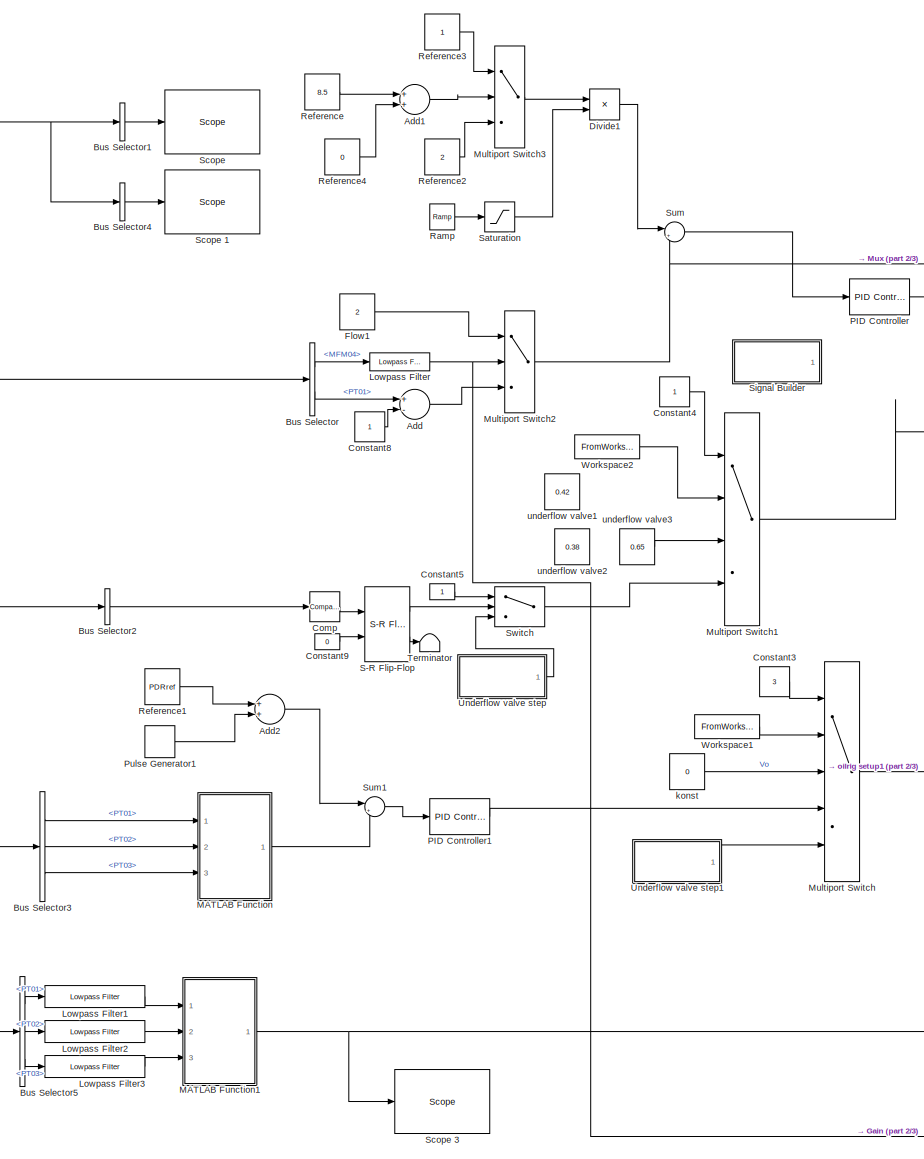
[diagram: root canvas - part 1/3, center side, full height]
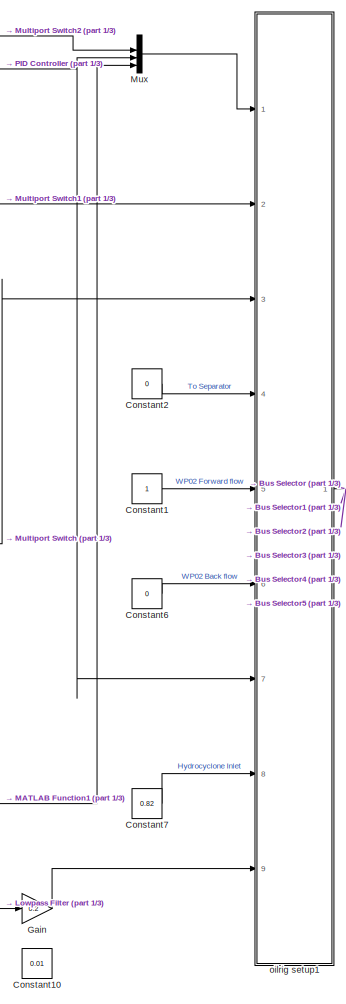
[diagram: root canvas - part 2/3, middle right region]
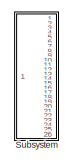
[diagram: root canvas - part 3/3, top left region]
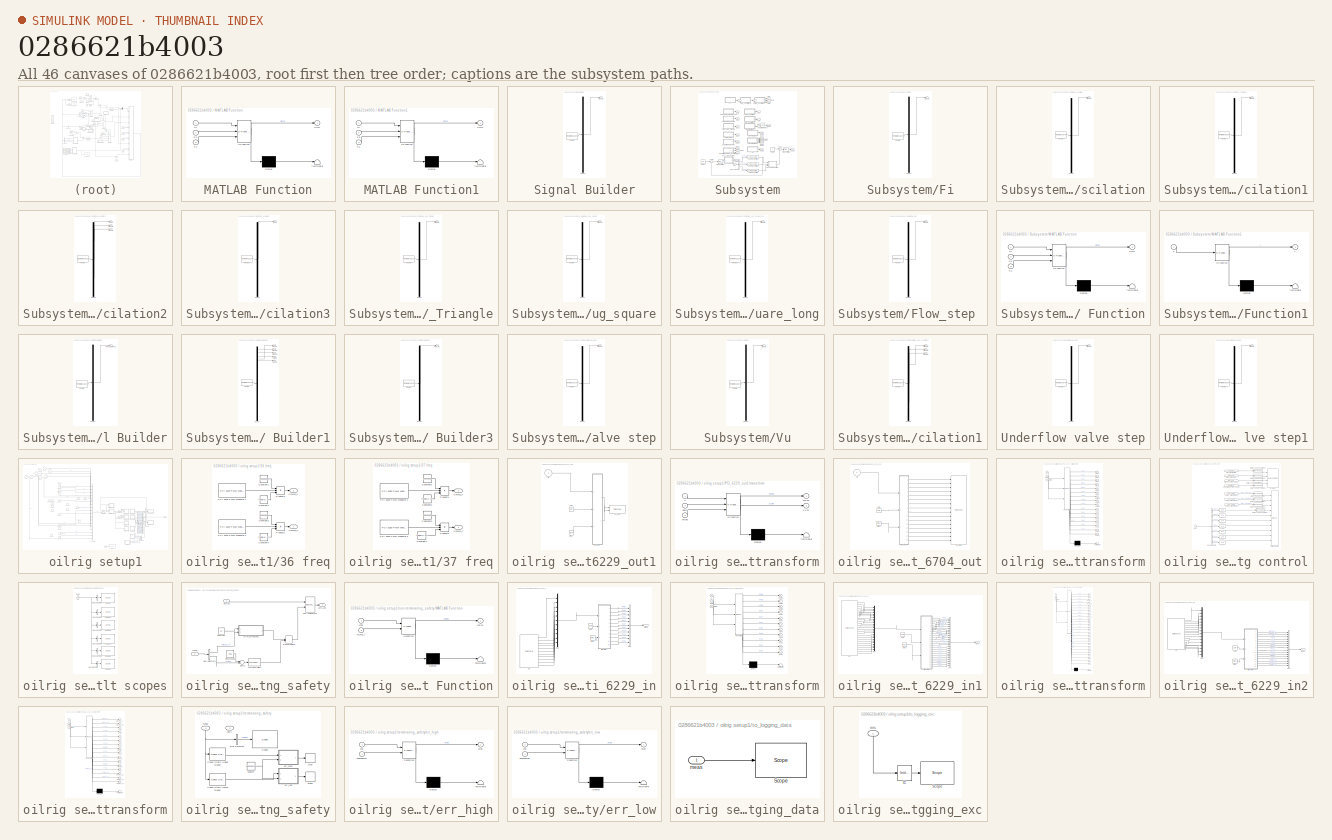
[diagram: thumbnail index - all 46 canvases of the model, root first then tree order]
MODEL slx_0286621b4003
KIND model
CONFIG AbsTol = auto
CONFIG FixedStep = auto
CONFIG MaxStep = auto
CONFIG MinStep = auto
CONFIG RelTol = 1e-3
CONFIG SampleTimeConstraint = Unconstrained
CONFIG Solver = FixedStepAuto
CONFIG SolverMode = Auto
CONFIG SolverName = FixedStepAuto
CONFIG StartTime = 0.0
CONFIG StopTime = 100
BLOCK [Sum] Add
  InputSameDT = off
  Inputs = +-
  OutDataTypeStr = Inherit: Inherit via internal rule
  Ports = [2, 1]
  SaturateOnIntegerOverflow = off
BLOCK [Sum] Add1
  InputSameDT = off
  OutDataTypeStr = Inherit: Inherit via internal rule
  Ports = [2, 1]
  SaturateOnIntegerOverflow = off
BLOCK [Sum] Add2
  InputSameDT = off
  OutDataTypeStr = Inherit: Inherit via internal rule
  Ports = [2, 1]
  SaturateOnIntegerOverflow = off
BLOCK [BusSelector] Bus Selector
  OutputSignals = signal3.PCI3.MFM04,signal3.PCI3.PT01
  Ports = [1, 2]
BLOCK [BusSelector] Bus Selector1
  OutputAsBus = on
  OutputSignals = signal2.MFM01,signal3.PCI3.MFM02,signal3.PCI3.MFM04,signal3.CFM02_F
  Ports = [1, 1]
BLOCK [BusSelector] Bus Selector2
  OutputAsBus = on
  OutputSignals = signal3.PCI3.DPT02
  Ports = [1, 1]
BLOCK [BusSelector] Bus Selector3
  OutputSignals = signal3.PCI3.PT01,signal2.PT02,signal2.PT03
  Ports = [1, 3]
BLOCK [BusSelector] Bus Selector4
  OutputAsBus = on
  OutputSignals = signal3.PCI3.PT01,signal2.PT02,signal2.PT03
  Ports = [1, 1]
BLOCK [BusSelector] Bus Selector5
  OutputSignals = signal3.PCI3.PT01,signal2.PT02,signal2.PT03
  Ports = [1, 3]
BLOCK [Reference] Comp  REF=simulink/Logic and Bit
Operations/Compare
To Constant
  Ports = [1, 1]
  SourceBlock = simulink/Logic and Bit\nOperations/Compare\nTo Constant
  SourceType = Compare To Constant
BLOCK [Constant] Constant1
BLOCK [Constant] Constant10
  Value = 0.01
BLOCK [Constant] Constant2
  Value = 0
BLOCK [Constant] Constant3
  Value = 3
BLOCK [Constant] Constant4
BLOCK [Constant] Constant5
BLOCK [Constant] Constant6
  Value = 0
BLOCK [Constant] Constant7
  Value = 0.82
BLOCK [Constant] Constant8
BLOCK [Constant] Constant9
  OutDataTypeStr = boolean
  Value = 0
BLOCK [Product] Divide1
  InputSameDT = off
  Inputs = **
  OutDataTypeStr = Inherit: Inherit via internal rule
  Ports = [2, 1]
  RndMeth = Floor
  SaturateOnIntegerOverflow = off
BLOCK [Constant] Flow1
  Value = 2
BLOCK [Gain] Gain
  Gain = 0.2
  OutDataTypeStr = Inherit: Inherit via internal rule
  ParamDataTypeStr = Inherit: Inherit via internal rule
  SaturateOnIntegerOverflow = off
BLOCK [Reference] Lowpass Filter  REF=dspfdesign/Lowpass Filter
  Ports = [1, 1]
  SourceBlock = dspfdesign/Lowpass Filter
  SourceType = dsp.LowpassFilter
BLOCK [Reference] Lowpass Filter1  REF=dspfdesign/Lowpass Filter
  Ports = [1, 1]
  SourceBlock = dspfdesign/Lowpass Filter
  SourceType = dsp.LowpassFilter
BLOCK [Reference] Lowpass Filter2  REF=dspfdesign/Lowpass Filter
  Ports = [1, 1]
  SourceBlock = dspfdesign/Lowpass Filter
  SourceType = dsp.LowpassFilter
BLOCK [Reference] Lowpass Filter3  REF=dspfdesign/Lowpass Filter
  Ports = [1, 1]
  SourceBlock = dspfdesign/Lowpass Filter
  SourceType = dsp.LowpassFilter
BLOCK [SubSystem] MATLAB Function
  ErrorFcn = Stateflow.Translate.translate
  PermitHierarchicalResolution = ExplicitOnly
  Ports = [3, 1]
  RequestExecContextInheritance = off
  SFBlockType = MATLAB Function
  TreatAsAtomicUnit = on
  Variant = off
BLOCK [Demux] MATLAB Function/ Demux 
  Outputs = 1
  Ports = [1, 1]
BLOCK [S-Function] MATLAB Function/ SFunction 
  EnableBusSupport = on
  FunctionName = sf_sfun
  PortCounts = [3 2]
  Ports = [3, 2]
  SFunctionDeploymentMode = off
  Tag = Stateflow S-Function PECT08 11
BLOCK [Terminator] MATLAB Function/ Terminator 
BLOCK [Outport] MATLAB Function/PDR
  IconDisplay = Port number
BLOCK [Inport] MATLAB Function/Pi
  IconDisplay = Port number
BLOCK [Inport] MATLAB Function/Po
  IconDisplay = Port number
  Port = 2
BLOCK [Inport] MATLAB Function/Pu
  IconDisplay = Port number
  Port = 3
BLOCK [SubSystem] MATLAB Function1
  ErrorFcn = Stateflow.Translate.translate
  PermitHierarchicalResolution = ExplicitOnly
  Ports = [3, 1]
  RequestExecContextInheritance = off
  SFBlockType = MATLAB Function
  TreatAsAtomicUnit = on
  Variant = off
BLOCK [Demux] MATLAB Function1/ Demux 
  Outputs = 1
  Ports = [1, 1]
BLOCK [S-Function] MATLAB Function1/ SFunction 
  EnableBusSupport = on
  FunctionName = sf_sfun
  PortCounts = [3 2]
  Ports = [3, 2]
  SFunctionDeploymentMode = off
  Tag = Stateflow S-Function PECT08 1
BLOCK [Terminator] MATLAB Function1/ Terminator 
BLOCK [Outport] MATLAB Function1/PDR
  IconDisplay = Port number
BLOCK [Inport] MATLAB Function1/Pi
  IconDisplay = Port number
BLOCK [Inport] MATLAB Function1/Po
  IconDisplay = Port number
  Port = 2
BLOCK [Inport] MATLAB Function1/Pu
  IconDisplay = Port number
  Port = 3
BLOCK [MultiPortSwitch] Multiport Switch
  InputSameDT = off
  Inputs = 4
  Ports = [5, 1]
  SaturateOnIntegerOverflow = off
BLOCK [MultiPortSwitch] Multiport Switch1
  InputSameDT = off
  Ports = [4, 1]
  SaturateOnIntegerOverflow = off
BLOCK [MultiPortSwitch] Multiport Switch2
  InputSameDT = off
  Inputs = 2
  Ports = [3, 1]
  SaturateOnIntegerOverflow = off
BLOCK [MultiPortSwitch] Multiport Switch3
  InputSameDT = off
  Inputs = 2
  Ports = [3, 1]
  SaturateOnIntegerOverflow = off
BLOCK [Mux] Mux
  DisplayOption = bar
  Ports = [4, 1]
BLOCK [Reference] PID Controller  REF=simulink/Continuous/PID Controller
  Ports = [1, 1]
  SourceBlock = simulink/Continuous/PID Controller
  SourceType = PID 1dof
BLOCK [Reference] PID Controller1  REF=simulink/Continuous/PID Controller
  Ports = [1, 1]
  SourceBlock = simulink/Continuous/PID Controller
  SourceType = PID 1dof
BLOCK [DiscretePulseGenerator] Pulse Generator1
  Amplitude = 0
  Period = 6000
  PhaseDelay = 1
  Ports = [0, 1]
  PulseWidth = 3000
  SampleTime = 0.01
BLOCK [Reference] Ramp  REF=simulink/Sources/Ramp
  Ports = [0, 1]
  SourceBlock = simulink/Sources/Ramp
  SourceType = Ramp
BLOCK [Constant] Reference
  Value = 8.5
BLOCK [Constant] Reference1
  Value = PDRref
BLOCK [Constant] Reference2
  Value = 2
BLOCK [Constant] Reference3
BLOCK [Constant] Reference4
  Value = 0
BLOCK [Reference] S-R Flip-Flop  REF=simulink_extras/Flip Flops/S-R
Flip-Flop
  Ports = [2, 2]
  SourceBlock = simulink_extras/Flip Flops/S-R\nFlip-Flop
  SourceType = SRFlipFlop
BLOCK [Saturate] Saturation
  InputPortMap = u0
  LowerLimit = 0
  Ports = [1, 1]
  UpperLimit = 1
BLOCK [Reference] Scope   REF=slrtlib/Displays and
Logging/Scope 
  Ports = [1]
  SourceBlock = slrtlib/Displays and\nLogging/Scope
  SourceType = xpcscopeblock
BLOCK [Reference] Scope 1  REF=slrtlib/Displays and
Logging/Scope 
  Ports = [1]
  SourceBlock = slrtlib/Displays and\nLogging/Scope
  SourceType = xpcscopeblock
BLOCK [Reference] Scope 3  REF=slrtlib/Displays and
Logging/Scope 
  Ports = [1]
  SourceBlock = slrtlib/Displays and\nLogging/Scope
  SourceType = xpcscopeblock
BLOCK [SubSystem] Signal Builder
  ClipboardFcn = sigbuilder_block('clipboard');
  CloseFcn = sigbuilder_block('close');
  ContinueFcn = sigbuilder_block('continue');
  CopyFcn = sigbuilder_block('copy');
  DeleteFcn = sigbuilder_block('delete');
  LoadFcn = sigbuilder_block('load');
  MaskHideContents = on
  ModelCloseFcn = sigbuilder_block('modelClose');
  NameChangeFcn = sigbuilder_block('namechange');
  OpenFcn = sigbuilder_block('open',[437.6 199.2 550.4 400 ]);
  PauseFcn = sigbuilder_block('pause');
  Ports = [0, 1]
  PreSaveFcn = sigbuilder_block('preSave');
  RequestExecContextInheritance = off
  StartFcn = sigbuilder_block('start');
  StopFcn = sigbuilder_block('stop');
  Tag = STV Subsys
  Variant = off
BLOCK [Demux] Signal Builder/Demux
  Outputs = 1
  Ports = [1, 1]
  Tag = STV Demux
BLOCK [FromWorkspace] Signal Builder/FromWs
  SampleTime = 0
  Tag = STV FromWs
  VariableName = tuvar
  ZeroCross = on
BLOCK [Outport] Signal Builder/Signal 1
  IconDisplay = Port number
  Tag = STV Outport
BLOCK [SubSystem] Subsystem
  Commented = on
  Ports = [1, 26]
  RequestExecContextInheritance = off
  Variant = off
BLOCK [BusSelector] Subsystem/Bus Selector2
  OutputSignals = signal3.PCI3.PT01,signal2.PT02,signal2.PT03
  Ports = [1, 3]
BLOCK [SubSystem] Subsystem/Fi
  ClipboardFcn = sigbuilder_block('clipboard');
  CloseFcn = sigbuilder_block('close');
  ContinueFcn = sigbuilder_block('continue');
  CopyFcn = sigbuilder_block('copy');
  DeleteFcn = sigbuilder_block('delete');
  LoadFcn = sigbuilder_block('load');
  MaskHideContents = on
  ModelCloseFcn = sigbuilder_block('modelClose');
  NameChangeFcn = sigbuilder_block('namechange');
  OpenFcn = sigbuilder_block('open',[6 30 1428 682.5 ]);
  PauseFcn = sigbuilder_block('pause');
  Ports = [0, 1]
  PreSaveFcn = sigbuilder_block('preSave');
  RequestExecContextInheritance = off
  StartFcn = sigbuilder_block('start');
  StopFcn = sigbuilder_block('stop');
  Tag = STV Subsys
  Variant = off
BLOCK [Demux] Subsystem/Fi/Demux
  Outputs = 1
  Ports = [1, 1]
  Tag = STV Demux
BLOCK [FromWorkspace] Subsystem/Fi/FromWs
  SampleTime = 0
  Tag = STV FromWs
  VariableName = tuvar
  ZeroCross = on
BLOCK [Outport] Subsystem/Fi/Signal 1
  IconDisplay = Port number
  Tag = STV Outport
BLOCK [Constant] Subsystem/Flow1
  Value = 5.5
BLOCK [SubSystem] Subsystem/Flow_oscilation
  ClipboardFcn = sigbuilder_block('clipboard');
  CloseFcn = sigbuilder_block('close');
  ContinueFcn = sigbuilder_block('continue');
  CopyFcn = sigbuilder_block('copy');
  DeleteFcn = sigbuilder_block('delete');
  LoadFcn = sigbuilder_block('load');
  MaskHideContents = on
  ModelCloseFcn = sigbuilder_block('modelClose');
  NameChangeFcn = sigbuilder_block('namechange');
  OpenFcn = sigbuilder_block('open',[6 30 1428 682.5 ]);
  PauseFcn = sigbuilder_block('pause');
  Ports = [0, 1]
  PreSaveFcn = sigbuilder_block('preSave');
  RequestExecContextInheritance = off
  StartFcn = sigbuilder_block('start');
  StopFcn = sigbuilder_block('stop');
  Tag = STV Subsys
  Variant = off
BLOCK [Demux] Subsystem/Flow_oscilation/Demux
  Outputs = 1
  Ports = [1, 1]
  Tag = STV Demux
BLOCK [FromWorkspace] Subsystem/Flow_oscilation/FromWs
  SampleTime = 0
  Tag = STV FromWs
  VariableName = tuvar
  ZeroCross = on
BLOCK [Outport] Subsystem/Flow_oscilation/Signal 1
  IconDisplay = Port number
  Tag = STV Outport
BLOCK [SubSystem] Subsystem/Flow_oscilation1
  ClipboardFcn = sigbuilder_block('clipboard');
  CloseFcn = sigbuilder_block('close');
  ContinueFcn = sigbuilder_block('continue');
  CopyFcn = sigbuilder_block('copy');
  DeleteFcn = sigbuilder_block('delete');
  LoadFcn = sigbuilder_block('load');
  MaskHideContents = on
  ModelCloseFcn = sigbuilder_block('modelClose');
  NameChangeFcn = sigbuilder_block('namechange');
  OpenFcn = sigbuilder_block('open',[6 30 1428 682.5 ]);
  PauseFcn = sigbuilder_block('pause');
  Ports = [0, 1]
  PreSaveFcn = sigbuilder_block('preSave');
  RequestExecContextInheritance = off
  StartFcn = sigbuilder_block('start');
  StopFcn = sigbuilder_block('stop');
  Tag = STV Subsys
  Variant = off
BLOCK [Demux] Subsystem/Flow_oscilation1/Demux
  Outputs = 1
  Ports = [1, 1]
  Tag = STV Demux
BLOCK [FromWorkspace] Subsystem/Flow_oscilation1/FromWs
  SampleTime = 0
  Tag = STV FromWs
  VariableName = tuvar
  ZeroCross = on
BLOCK [Outport] Subsystem/Flow_oscilation1/Signal 1
  IconDisplay = Port number
  Tag = STV Outport
BLOCK [SubSystem] Subsystem/Flow_oscilation2
  ClipboardFcn = sigbuilder_block('clipboard');
  CloseFcn = sigbuilder_block('close');
  ContinueFcn = sigbuilder_block('continue');
  CopyFcn = sigbuilder_block('copy');
  DeleteFcn = sigbuilder_block('delete');
  LoadFcn = sigbuilder_block('load');
  MaskHideContents = on
  ModelCloseFcn = sigbuilder_block('modelClose');
  NameChangeFcn = sigbuilder_block('namechange');
  OpenFcn = sigbuilder_block('open',[5.4 5.4 1141.2 582 ]);
  PauseFcn = sigbuilder_block('pause');
  Ports = [0, 3]
  PreSaveFcn = sigbuilder_block('preSave');
  RequestExecContextInheritance = off
  StartFcn = sigbuilder_block('start');
  StopFcn = sigbuilder_block('stop');
  Tag = STV Subsys
  Variant = off
BLOCK [Outport] Subsystem/Flow_oscilation2/CV09
  IconDisplay = Port number
  Tag = STV Outport
BLOCK [Demux] Subsystem/Flow_oscilation2/Demux
  Outputs = 3
  Ports = [1, 3]
  Tag = STV Demux
BLOCK [FromWorkspace] Subsystem/Flow_oscilation2/FromWs
  SampleTime = 0
  Tag = STV FromWs
  VariableName = tuvar
  ZeroCross = on
BLOCK [Outport] Subsystem/Flow_oscilation2/Signal 1
  IconDisplay = Port number
  Port = 2
  Tag = STV Outport
BLOCK [Outport] Subsystem/Flow_oscilation2/Signal 2
  IconDisplay = Port number
  Port = 3
  Tag = STV Outport
BLOCK [SubSystem] Subsystem/Flow_oscilation3
  ClipboardFcn = sigbuilder_block('clipboard');
  CloseFcn = sigbuilder_block('close');
  ContinueFcn = sigbuilder_block('continue');
  CopyFcn = sigbuilder_block('copy');
  DeleteFcn = sigbuilder_block('delete');
  LoadFcn = sigbuilder_block('load');
  MaskHideContents = on
  ModelCloseFcn = sigbuilder_block('modelClose');
  NameChangeFcn = sigbuilder_block('namechange');
  OpenFcn = sigbuilder_block('open',[5.4 5.4 1141.2 582 ]);
  PauseFcn = sigbuilder_block('pause');
  Ports = [0, 1]
  PreSaveFcn = sigbuilder_block('preSave');
  RequestExecContextInheritance = off
  StartFcn = sigbuilder_block('start');
  StopFcn = sigbuilder_block('stop');
  Tag = STV Subsys
  Variant = off
BLOCK [Outport] Subsystem/Flow_oscilation3/CV09
  IconDisplay = Port number
  Tag = STV Outport
BLOCK [Demux] Subsystem/Flow_oscilation3/Demux
  Outputs = 1
  Ports = [1, 1]
  Tag = STV Demux
BLOCK [FromWorkspace] Subsystem/Flow_oscilation3/FromWs
  SampleTime = 0
  Tag = STV FromWs
  VariableName = tuvar
  ZeroCross = on
BLOCK [SubSystem] Subsystem/Flow_slug_Triangle
  ClipboardFcn = sigbuilder_block('clipboard');
  CloseFcn = sigbuilder_block('close');
  ContinueFcn = sigbuilder_block('continue');
  CopyFcn = sigbuilder_block('copy');
  DeleteFcn = sigbuilder_block('delete');
  LoadFcn = sigbuilder_block('load');
  MaskHideContents = on
  ModelCloseFcn = sigbuilder_block('modelClose');
  NameChangeFcn = sigbuilder_block('namechange');
  OpenFcn = sigbuilder_block('open',[6 30 1428 682.5 ]);
  PauseFcn = sigbuilder_block('pause');
  Ports = [0, 1]
  PreSaveFcn = sigbuilder_block('preSave');
  RequestExecContextInheritance = off
  StartFcn = sigbuilder_block('start');
  StopFcn = sigbuilder_block('stop');
  Tag = STV Subsys
  Variant = off
BLOCK [Demux] Subsystem/Flow_slug_Triangle/Demux
  Outputs = 1
  Ports = [1, 1]
  Tag = STV Demux
BLOCK [FromWorkspace] Subsystem/Flow_slug_Triangle/FromWs
  SampleTime = 0
  Tag = STV FromWs
  VariableName = tuvar
  ZeroCross = on
BLOCK [Outport] Subsystem/Flow_slug_Triangle/Signal 1
  IconDisplay = Port number
  Tag = STV Outport
BLOCK [SubSystem] Subsystem/Flow_slug_square
  ClipboardFcn = sigbuilder_block('clipboard');
  CloseFcn = sigbuilder_block('close');
  ContinueFcn = sigbuilder_block('continue');
  CopyFcn = sigbuilder_block('copy');
  DeleteFcn = sigbuilder_block('delete');
  LoadFcn = sigbuilder_block('load');
  MaskHideContents = on
  ModelCloseFcn = sigbuilder_block('modelClose');
  NameChangeFcn = sigbuilder_block('namechange');
  OpenFcn = sigbuilder_block('open',[6 30 1428 682.5 ]);
  PauseFcn = sigbuilder_block('pause');
  Ports = [0, 1]
  PreSaveFcn = sigbuilder_block('preSave');
  RequestExecContextInheritance = off
  StartFcn = sigbuilder_block('start');
  StopFcn = sigbuilder_block('stop');
  Tag = STV Subsys
  Variant = off
BLOCK [Demux] Subsystem/Flow_slug_square/Demux
  Outputs = 1
  Ports = [1, 1]
  Tag = STV Demux
BLOCK [FromWorkspace] Subsystem/Flow_slug_square/FromWs
  SampleTime = 0
  Tag = STV FromWs
  VariableName = tuvar
  ZeroCross = on
BLOCK [Outport] Subsystem/Flow_slug_square/Signal 1
  IconDisplay = Port number
  Tag = STV Outport
BLOCK [SubSystem] Subsystem/Flow_slug_square_long
  ClipboardFcn = sigbuilder_block('clipboard');
  CloseFcn = sigbuilder_block('close');
  ContinueFcn = sigbuilder_block('continue');
  CopyFcn = sigbuilder_block('copy');
  DeleteFcn = sigbuilder_block('delete');
  LoadFcn = sigbuilder_block('load');
  MaskHideContents = on
  ModelCloseFcn = sigbuilder_block('modelClose');
  NameChangeFcn = sigbuilder_block('namechange');
  OpenFcn = sigbuilder_block('open',[6 30 1428 682.5 ]);
  PauseFcn = sigbuilder_block('pause');
  Ports = [0, 1]
  PreSaveFcn = sigbuilder_block('preSave');
  RequestExecContextInheritance = off
  StartFcn = sigbuilder_block('start');
  StopFcn = sigbuilder_block('stop');
  Tag = STV Subsys
  Variant = off
BLOCK [Demux] Subsystem/Flow_slug_square_long/Demux
  Outputs = 1
  Ports = [1, 1]
  Tag = STV Demux
BLOCK [FromWorkspace] Subsystem/Flow_slug_square_long/FromWs
  SampleTime = 0
  Tag = STV FromWs
  VariableName = tuvar
  ZeroCross = on
BLOCK [Outport] Subsystem/Flow_slug_square_long/Signal 1
  IconDisplay = Port number
  Tag = STV Outport
BLOCK [SubSystem] Subsystem/Flow_step 
  ClipboardFcn = sigbuilder_block('clipboard');
  CloseFcn = sigbuilder_block('close');
  ContinueFcn = sigbuilder_block('continue');
  CopyFcn = sigbuilder_block('copy');
  DeleteFcn = sigbuilder_block('delete');
  LoadFcn = sigbuilder_block('load');
  MaskHideContents = on
  ModelCloseFcn = sigbuilder_block('modelClose');
  NameChangeFcn = sigbuilder_block('namechange');
  OpenFcn = sigbuilder_block('open',[6 30 1428 682.5 ]);
  PauseFcn = sigbuilder_block('pause');
  Ports = [0, 1]
  PreSaveFcn = sigbuilder_block('preSave');
  RequestExecContextInheritance = off
  StartFcn = sigbuilder_block('start');
  StopFcn = sigbuilder_block('stop');
  Tag = STV Subsys
  Variant = off
BLOCK [Demux] Subsystem/Flow_step /Demux
  Outputs = 1
  Ports = [1, 1]
  Tag = STV Demux
BLOCK [FromWorkspace] Subsystem/Flow_step /FromWs
  SampleTime = 0
  Tag = STV FromWs
  VariableName = tuvar
  ZeroCross = on
BLOCK [Outport] Subsystem/Flow_step /Signal 1
  IconDisplay = Port number
  Tag = STV Outport
BLOCK [Inport] Subsystem/In1
  IconDisplay = Port number
BLOCK [Reference] Subsystem/Lowpass Filter1  REF=dspfdesign/Lowpass Filter
  Ports = [1, 1]
  SourceBlock = dspfdesign/Lowpass Filter
  SourceType = dsp.LowpassFilter
BLOCK [Reference] Subsystem/Lowpass Filter2  REF=dspfdesign/Lowpass Filter
  Ports = [1, 1]
  SourceBlock = dspfdesign/Lowpass Filter
  SourceType = dsp.LowpassFilter
BLOCK [Reference] Subsystem/Lowpass Filter3  REF=dspfdesign/Lowpass Filter
  Ports = [1, 1]
  SourceBlock = dspfdesign/Lowpass Filter
  SourceType = dsp.LowpassFilter
BLOCK [SubSystem] Subsystem/MATLAB Function
  ErrorFcn = Stateflow.Translate.translate
  PermitHierarchicalResolution = ExplicitOnly
  Ports = [3, 1]
  RequestExecContextInheritance = off
  SFBlockType = MATLAB Function
  TreatAsAtomicUnit = on
  Variant = off
BLOCK [Demux] Subsystem/MATLAB Function/ Demux 
  Outputs = 1
  Ports = [1, 1]
BLOCK [S-Function] Subsystem/MATLAB Function/ SFunction 
  EnableBusSupport = on
  FunctionName = sf_sfun
  PortCounts = [3 2]
  Ports = [3, 2]
  SFunctionDeploymentMode = off
  Tag = Stateflow S-Function PECT08 8
BLOCK [Terminator] Subsystem/MATLAB Function/ Terminator 
BLOCK [Outport] Subsystem/MATLAB Function/PDR
  IconDisplay = Port number
BLOCK [Inport] Subsystem/MATLAB Function/Pi
  IconDisplay = Port number
BLOCK [Inport] Subsystem/MATLAB Function/Po
  IconDisplay = Port number
  Port = 2
BLOCK [Inport] Subsystem/MATLAB Function/Pu
  IconDisplay = Port number
  Port = 3
BLOCK [SubSystem] Subsystem/MATLAB Function1
  ErrorFcn = Stateflow.Translate.translate
  PermitHierarchicalResolution = ExplicitOnly
  Ports = [1, 1]
  RequestExecContextInheritance = off
  SFBlockType = MATLAB Function
  TreatAsAtomicUnit = on
  Variant = off
BLOCK [Demux] Subsystem/MATLAB Function1/ Demux 
  Outputs = 1
  Ports = [1, 1]
BLOCK [S-Function] Subsystem/MATLAB Function1/ SFunction 
  EnableBusSupport = on
  FunctionName = sf_sfun
  PortCounts = [1 2]
  Ports = [1, 2]
  SFunctionDeploymentMode = off
  Tag = Stateflow S-Function PECT08 10
BLOCK [Terminator] Subsystem/MATLAB Function1/ Terminator 
BLOCK [Inport] Subsystem/MATLAB Function1/u
  IconDisplay = Port number
BLOCK [Outport] Subsystem/MATLAB Function1/y
  IconDisplay = Port number
BLOCK [Outport] Subsystem/Out1
  IconDisplay = Port number
BLOCK [Outport] Subsystem/Out10
  IconDisplay = Port number
  Port = 10
BLOCK [Outport] Subsystem/Out11
  IconDisplay = Port number
  Port = 11
BLOCK [Outport] Subsystem/Out12
  IconDisplay = Port number
  Port = 12
BLOCK [Outport] Subsystem/Out13
  IconDisplay = Port number
  Port = 13
BLOCK [Outport] Subsystem/Out14
  IconDisplay = Port number
  Port = 14
BLOCK [Outport] Subsystem/Out15
  IconDisplay = Port number
  Port = 15
BLOCK [Outport] Subsystem/Out16
  IconDisplay = Port number
  Port = 16
BLOCK [Outport] Subsystem/Out17
  IconDisplay = Port number
  Port = 17
BLOCK [Outport] Subsystem/Out18
  IconDisplay = Port number
  Port = 18
BLOCK [Outport] Subsystem/Out19
  IconDisplay = Port number
  Port = 19
BLOCK [Outport] Subsystem/Out2
  IconDisplay = Port number
  Port = 2
BLOCK [Outport] Subsystem/Out20
  IconDisplay = Port number
  Port = 20
BLOCK [Outport] Subsystem/Out21
  IconDisplay = Port number
  Port = 21
BLOCK [Outport] Subsystem/Out22
  IconDisplay = Port number
  Port = 22
BLOCK [Outport] Subsystem/Out23
  IconDisplay = Port number
  Port = 23
BLOCK [Outport] Subsystem/Out24
  IconDisplay = Port number
  Port = 24
BLOCK [Outport] Subsystem/Out25
  IconDisplay = Port number
  Port = 25
BLOCK [Outport] Subsystem/Out26
  IconDisplay = Port number
  Port = 26
BLOCK [Outport] Subsystem/Out3
  IconDisplay = Port number
  Port = 3
BLOCK [Outport] Subsystem/Out4
  IconDisplay = Port number
  Port = 4
BLOCK [Outport] Subsystem/Out5
  IconDisplay = Port number
  Port = 5
BLOCK [Outport] Subsystem/Out6
  IconDisplay = Port number
  Port = 6
BLOCK [Outport] Subsystem/Out7
  IconDisplay = Port number
  Port = 7
BLOCK [Outport] Subsystem/Out8
  IconDisplay = Port number
  Port = 8
BLOCK [Outport] Subsystem/Out9
  IconDisplay = Port number
  Port = 9
BLOCK [Constant] Subsystem/PDR ref
  Value = 2
BLOCK [Reference] Subsystem/PID Controller1  REF=simulink/Continuous/PID Controller
  Ports = [1, 1]
  SourceBlock = simulink/Continuous/PID Controller
  SourceType = PID 1dof
BLOCK [Reference] Subsystem/PID Controller2  REF=simulink/Continuous/PID Controller
  Ports = [1, 1]
  SourceBlock = simulink/Continuous/PID Controller
  SourceType = PID 1dof
BLOCK [SubSystem] Subsystem/Signal Builder
  ClipboardFcn = sigbuilder_block('clipboard');
  CloseFcn = sigbuilder_block('close');
  ContinueFcn = sigbuilder_block('continue');
  CopyFcn = sigbuilder_block('copy');
  DeleteFcn = sigbuilder_block('delete');
  LoadFcn = sigbuilder_block('load');
  MaskHideContents = on
  ModelCloseFcn = sigbuilder_block('modelClose');
  NameChangeFcn = sigbuilder_block('namechange');
  OpenFcn = sigbuilder_block('open',[6 30 1428 682.5 ]);
  PauseFcn = sigbuilder_block('pause');
  Ports = [0, 1]
  PreSaveFcn = sigbuilder_block('preSave');
  RequestExecContextInheritance = off
  StartFcn = sigbuilder_block('start');
  StopFcn = sigbuilder_block('stop');
  Tag = STV Subsys
  Variant = off
BLOCK [Demux] Subsystem/Signal Builder/Demux
  Outputs = 1
  Ports = [1, 1]
  Tag = STV Demux
BLOCK [FromWorkspace] Subsystem/Signal Builder/FromWs
  SampleTime = 0
  Tag = STV FromWs
  VariableName = tuvar
  ZeroCross = on
BLOCK [Outport] Subsystem/Signal Builder/PDR_Reference
  IconDisplay = Port number
  Tag = STV Outport
BLOCK [SubSystem] Subsystem/Signal Builder1
  ClipboardFcn = sigbuilder_block('clipboard');
  CloseFcn = sigbuilder_block('close');
  ContinueFcn = sigbuilder_block('continue');
  CopyFcn = sigbuilder_block('copy');
  DeleteFcn = sigbuilder_block('delete');
  LoadFcn = sigbuilder_block('load');
  MaskHideContents = on
  ModelCloseFcn = sigbuilder_block('modelClose');
  NameChangeFcn = sigbuilder_block('namechange');
  OpenFcn = sigbuilder_block('open',[6 30 1428 682.5 ]);
  PauseFcn = sigbuilder_block('pause');
  Ports = [0, 5]
  PreSaveFcn = sigbuilder_block('preSave');
  RequestExecContextInheritance = off
  StartFcn = sigbuilder_block('start');
  StopFcn = sigbuilder_block('stop');
  Tag = STV Subsys
  Variant = off
BLOCK [Demux] Subsystem/Signal Builder1/Demux
  Outputs = 5
  Ports = [1, 5]
  Tag = STV Demux
BLOCK [FromWorkspace] Subsystem/Signal Builder1/FromWs
  SampleTime = 0
  Tag = STV FromWs
  VariableName = tuvar
  ZeroCross = on
BLOCK [Outport] Subsystem/Signal Builder1/Narrow
  IconDisplay = Port number
  Port = 4
  Tag = STV Outport
BLOCK [Outport] Subsystem/Signal Builder1/Signal 1
  IconDisplay = Port number
  Tag = STV Outport
BLOCK [Outport] Subsystem/Signal Builder1/Signal 2
  IconDisplay = Port number
  Port = 2
  Tag = STV Outport
BLOCK [Outport] Subsystem/Signal Builder1/Signal 3
  IconDisplay = Port number
  Port = 3
  Tag = STV Outport
BLOCK [Outport] Subsystem/Signal Builder1/Signal 4
  IconDisplay = Port number
  Port = 5
  Tag = STV Outport
BLOCK [SubSystem] Subsystem/Signal Builder3
  ClipboardFcn = sigbuilder_block('clipboard');
  CloseFcn = sigbuilder_block('close');
  ContinueFcn = sigbuilder_block('continue');
  CopyFcn = sigbuilder_block('copy');
  DeleteFcn = sigbuilder_block('delete');
  LoadFcn = sigbuilder_block('load');
  MaskHideContents = on
  ModelCloseFcn = sigbuilder_block('modelClose');
  NameChangeFcn = sigbuilder_block('namechange');
  OpenFcn = sigbuilder_block('open',[642.75 95.25 791.25 450.75 ]);
  PauseFcn = sigbuilder_block('pause');
  Ports = [0, 1]
  PreSaveFcn = sigbuilder_block('preSave');
  RequestExecContextInheritance = off
  StartFcn = sigbuilder_block('start');
  StopFcn = sigbuilder_block('stop');
  Tag = STV Subsys
  Variant = off
BLOCK [Demux] Subsystem/Signal Builder3/Demux
  Outputs = 1
  Ports = [1, 1]
  Tag = STV Demux
BLOCK [FromWorkspace] Subsystem/Signal Builder3/FromWs
  SampleTime = 0
  Tag = STV FromWs
  VariableName = tuvar
  ZeroCross = on
BLOCK [Outport] Subsystem/Signal Builder3/PDR_ref
  IconDisplay = Port number
  Tag = STV Outport
BLOCK [Sum] Subsystem/Sum1
  IconShape = round
  InputSameDT = off
  Inputs = |+-
  OutDataTypeStr = Inherit: Inherit via internal rule
  Ports = [2, 1]
  SaturateOnIntegerOverflow = off
BLOCK [Sum] Subsystem/Sum2
  IconShape = round
  InputSameDT = off
  Inputs = |+-
  OutDataTypeStr = Inherit: Inherit via internal rule
  Ports = [2, 1]
  SaturateOnIntegerOverflow = off
BLOCK [SubSystem] Subsystem/Underflow valve step
  ClipboardFcn = sigbuilder_block('clipboard');
  CloseFcn = sigbuilder_block('close');
  ContinueFcn = sigbuilder_block('continue');
  CopyFcn = sigbuilder_block('copy');
  DeleteFcn = sigbuilder_block('delete');
  LoadFcn = sigbuilder_block('load');
  MaskHideContents = on
  ModelCloseFcn = sigbuilder_block('modelClose');
  NameChangeFcn = sigbuilder_block('namechange');
  OpenFcn = sigbuilder_block('open',[6 30 1428 682.5 ]);
  PauseFcn = sigbuilder_block('pause');
  Ports = [0, 1]
  PreSaveFcn = sigbuilder_block('preSave');
  RequestExecContextInheritance = off
  StartFcn = sigbuilder_block('start');
  StopFcn = sigbuilder_block('stop');
  Tag = STV Subsys
  Variant = off
BLOCK [Demux] Subsystem/Underflow valve step/Demux
  Outputs = 1
  Ports = [1, 1]
  Tag = STV Demux
BLOCK [FromWorkspace] Subsystem/Underflow valve step/FromWs
  SampleTime = 0
  Tag = STV FromWs
  VariableName = tuvar
  ZeroCross = on
BLOCK [Outport] Subsystem/Underflow valve step/Signal 1
  IconDisplay = Port number
  Tag = STV Outport
BLOCK [SubSystem] Subsystem/Vu
  ClipboardFcn = sigbuilder_block('clipboard');
  CloseFcn = sigbuilder_block('close');
  ContinueFcn = sigbuilder_block('continue');
  CopyFcn = sigbuilder_block('copy');
  DeleteFcn = sigbuilder_block('delete');
  LoadFcn = sigbuilder_block('load');
  MaskHideContents = on
  ModelCloseFcn = sigbuilder_block('modelClose');
  NameChangeFcn = sigbuilder_block('namechange');
  OpenFcn = sigbuilder_block('open',[6 30 1428 682.5 ]);
  PauseFcn = sigbuilder_block('pause');
  Ports = [0, 1]
  PreSaveFcn = sigbuilder_block('preSave');
  RequestExecContextInheritance = off
  StartFcn = sigbuilder_block('start');
  StopFcn = sigbuilder_block('stop');
  Tag = STV Subsys
  Variant = off
BLOCK [Demux] Subsystem/Vu/Demux
  Outputs = 1
  Ports = [1, 1]
  Tag = STV Demux
BLOCK [FromWorkspace] Subsystem/Vu/FromWs
  SampleTime = 0
  Tag = STV FromWs
  VariableName = tuvar
  ZeroCross = on
BLOCK [Outport] Subsystem/Vu/Signal 1
  IconDisplay = Port number
  Tag = STV Outport
BLOCK [Constant] Subsystem/underflow valve
  Value = 0.355
BLOCK [SubSystem] Subsystem/underflow_valve_oscilation1
  ClipboardFcn = sigbuilder_block('clipboard');
  CloseFcn = sigbuilder_block('close');
  ContinueFcn = sigbuilder_block('continue');
  CopyFcn = sigbuilder_block('copy');
  DeleteFcn = sigbuilder_block('delete');
  LoadFcn = sigbuilder_block('load');
  MaskHideContents = on
  ModelCloseFcn = sigbuilder_block('modelClose');
  NameChangeFcn = sigbuilder_block('namechange');
  OpenFcn = sigbuilder_block('open',[6 30 1428 682.5 ]);
  PauseFcn = sigbuilder_block('pause');
  Ports = [0, 3]
  PreSaveFcn = sigbuilder_block('preSave');
  RequestExecContextInheritance = off
  StartFcn = sigbuilder_block('start');
  StopFcn = sigbuilder_block('stop');
  Tag = STV Subsys
  Variant = off
BLOCK [Demux] Subsystem/underflow_valve_oscilation1/Demux
  Outputs = 3
  Ports = [1, 3]
  Tag = STV Demux
BLOCK [FromWorkspace] Subsystem/underflow_valve_oscilation1/FromWs
  SampleTime = 0
  Tag = STV FromWs
  VariableName = tuvar
  ZeroCross = on
BLOCK [Outport] Subsystem/underflow_valve_oscilation1/Signal 1
  IconDisplay = Port number
  Tag = STV Outport
BLOCK [Outport] Subsystem/underflow_valve_oscilation1/Signal 2
  IconDisplay = Port number
  Port = 2
  Tag = STV Outport
BLOCK [Outport] Subsystem/underflow_valve_oscilation1/Signal 3
  IconDisplay = Port number
  Port = 3
  Tag = STV Outport
BLOCK [Sum] Sum
  IconShape = round
  InputSameDT = off
  Inputs = |+-
  OutDataTypeStr = Inherit: Inherit via internal rule
  Ports = [2, 1]
  SaturateOnIntegerOverflow = off
BLOCK [Sum] Sum1
  IconShape = round
  InputSameDT = off
  Inputs = |+-
  OutDataTypeStr = Inherit: Inherit via internal rule
  Ports = [2, 1]
  SaturateOnIntegerOverflow = off
BLOCK [Switch] Switch
  Criteria = u2 > Threshold
  InputSameDT = off
  SaturateOnIntegerOverflow = off
BLOCK [Terminator] Terminator
BLOCK [SubSystem] Underflow valve step
  ClipboardFcn = sigbuilder_block('clipboard');
  CloseFcn = sigbuilder_block('close');
  ContinueFcn = sigbuilder_block('continue');
  CopyFcn = sigbuilder_block('copy');
  DeleteFcn = sigbuilder_block('delete');
  LoadFcn = sigbuilder_block('load');
  MaskHideContents = on
  ModelCloseFcn = sigbuilder_block('modelClose');
  NameChangeFcn = sigbuilder_block('namechange');
  OpenFcn = sigbuilder_block('open',[6 30 1428 682.5 ]);
  PauseFcn = sigbuilder_block('pause');
  Ports = [0, 1]
  PreSaveFcn = sigbuilder_block('preSave');
  RequestExecContextInheritance = off
  StartFcn = sigbuilder_block('start');
  StopFcn = sigbuilder_block('stop');
  Tag = STV Subsys
  Variant = off
BLOCK [Demux] Underflow valve step/Demux
  Outputs = 1
  Ports = [1, 1]
  Tag = STV Demux
BLOCK [FromWorkspace] Underflow valve step/FromWs
  SampleTime = 0
  Tag = STV FromWs
  VariableName = tuvar
  ZeroCross = on
BLOCK [Outport] Underflow valve step/Signal 1
  IconDisplay = Port number
  Tag = STV Outport
BLOCK [SubSystem] Underflow valve step1
  ClipboardFcn = sigbuilder_block('clipboard');
  CloseFcn = sigbuilder_block('close');
  ContinueFcn = sigbuilder_block('continue');
  CopyFcn = sigbuilder_block('copy');
  DeleteFcn = sigbuilder_block('delete');
  LoadFcn = sigbuilder_block('load');
  MaskHideContents = on
  ModelCloseFcn = sigbuilder_block('modelClose');
  NameChangeFcn = sigbuilder_block('namechange');
  OpenFcn = sigbuilder_block('open',[6 30 1428 682.5 ]);
  PauseFcn = sigbuilder_block('pause');
  Ports = [0, 1]
  PreSaveFcn = sigbuilder_block('preSave');
  RequestExecContextInheritance = off
  StartFcn = sigbuilder_block('start');
  StopFcn = sigbuilder_block('stop');
  Tag = STV Subsys
  Variant = off
BLOCK [Demux] Underflow valve step1/Demux
  Outputs = 1
  Ports = [1, 1]
  Tag = STV Demux
BLOCK [FromWorkspace] Underflow valve step1/FromWs
  SampleTime = 0
  Tag = STV FromWs
  VariableName = tuvar
  ZeroCross = on
BLOCK [Outport] Underflow valve step1/Signal 1
  IconDisplay = Port number
  Tag = STV Outport
BLOCK [FromWorkspace] Workspace1
  Commented = on
  VariableName = Vow
  ZeroCross = on
BLOCK [FromWorkspace] Workspace2
  VariableName = Vuw
  ZeroCross = on
BLOCK [Constant] konst
  Value = 0
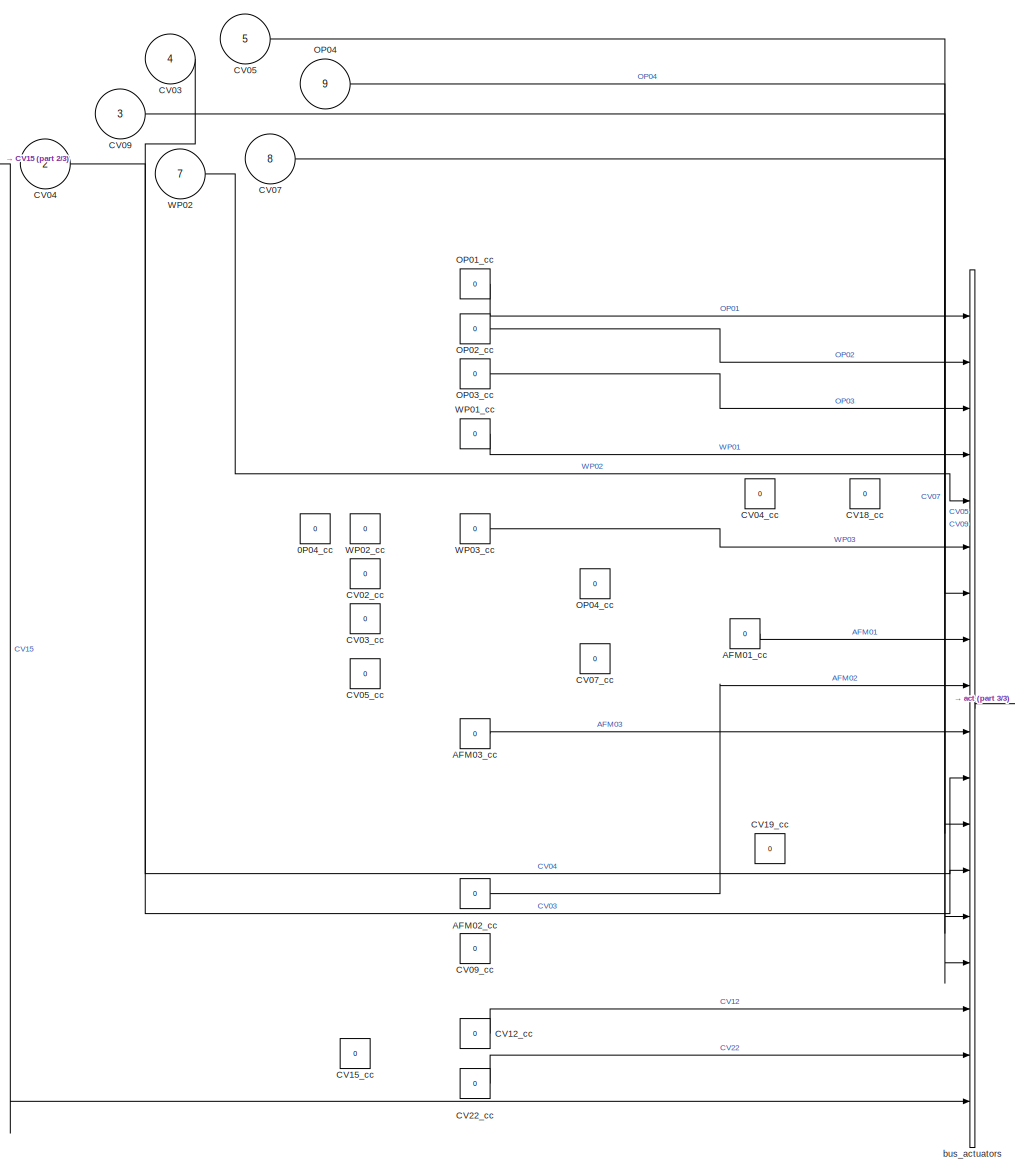
[diagram: oilrig setup1 - part 1/3, left side, full height]
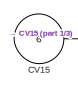
[diagram: oilrig setup1 - part 2/3, top left region]
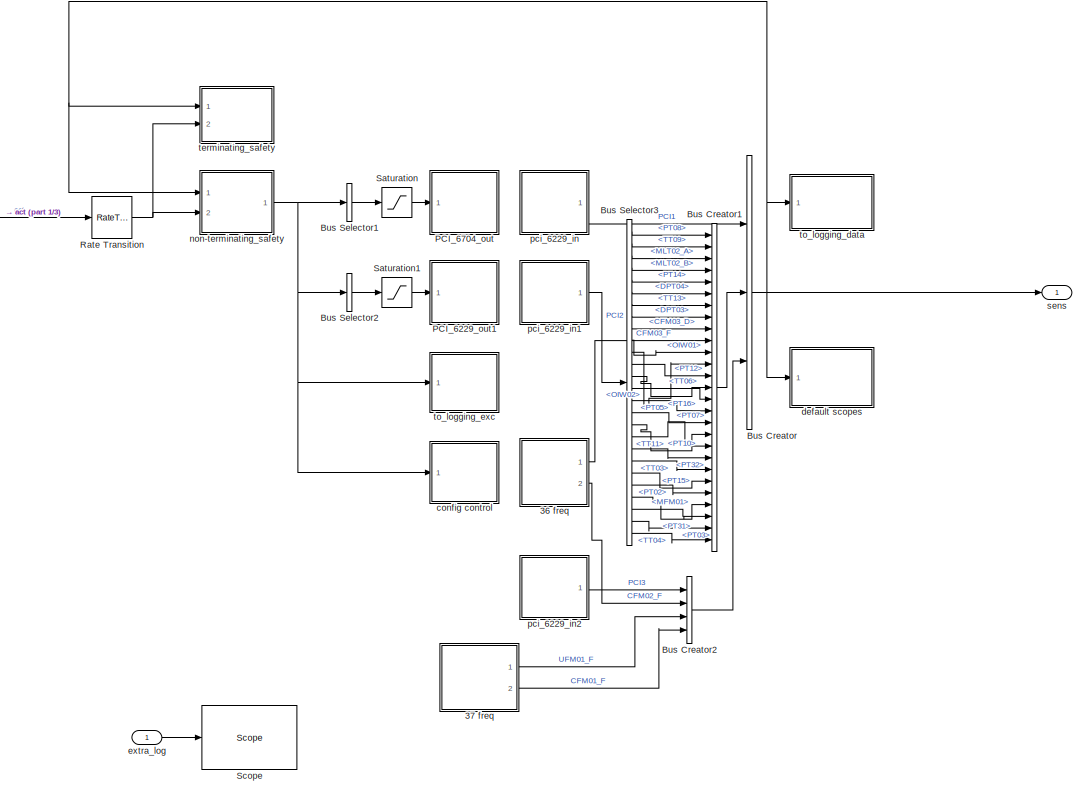
[diagram: oilrig setup1 - part 3/3, bottom right region]
BLOCK [SubSystem] oilrig setup1
  AncestorBlock = library_oilrig/oilrig setup
  MinAlgLoopOccurrences = on
  Ports = [9, 1]
  RequestExecContextInheritance = off
  TreatAsAtomicUnit = on
  Variant = off
BLOCK [Constant] oilrig setup1/0P04_cc
  Value = 0
BLOCK [SubSystem] oilrig setup1/36 freq
  Ports = [0, 2]
  RequestExecContextInheritance = off
  Variant = off
BLOCK [Outport] oilrig setup1/36 freq/CFM02_F
  IconDisplay = Port number
  Port = 2
BLOCK [Outport] oilrig setup1/36 freq/CFM03_F
  IconDisplay = Port number
BLOCK [Constant] oilrig setup1/36 freq/Constant1
  Value = 80000000
BLOCK [Constant] oilrig setup1/36 freq/Constant2
  Value = freqin(2).Gain
BLOCK [Constant] oilrig setup1/36 freq/Constant3
  Value = 80000000
BLOCK [Constant] oilrig setup1/36 freq/Constant4
  Value = freqin(1).Gain
BLOCK [Reference] oilrig setup1/36 freq/PCI 6229 PWM Measure 1  REF=xpcnilib/Counter/M Series/PCI 6229 PWM Measure 
  Ports = [0, 1]
  SourceBlock = xpcnilib/Counter/M Series/PCI 6229 PWM Measure
  SourceType = pwminpnipci6229
BLOCK [Reference] oilrig setup1/36 freq/PCI 6229 PWM Measure 2  REF=xpcnilib/Counter/M Series/PCI 6229 PWM Measure 
  Ports = [0, 1]
  SourceBlock = xpcnilib/Counter/M Series/PCI 6229 PWM Measure
  SourceType = pwminpnipci6229
BLOCK [Product] oilrig setup1/36 freq/Product1
  InputSameDT = off
  Inputs = */*
  OutDataTypeStr = Inherit: Inherit via internal rule
  Ports = [3, 1]
  RndMeth = Floor
  SaturateOnIntegerOverflow = off
BLOCK [Product] oilrig setup1/36 freq/Product2
  InputSameDT = off
  Inputs = */*
  OutDataTypeStr = Inherit: Inherit via internal rule
  Ports = [3, 1]
  RndMeth = Floor
  SaturateOnIntegerOverflow = off
BLOCK [SubSystem] oilrig setup1/37 freq
  Ports = [0, 2]
  RequestExecContextInheritance = off
  Variant = off
BLOCK [Outport] oilrig setup1/37 freq/CFM01_F
  IconDisplay = Port number
  Port = 2
BLOCK [Constant] oilrig setup1/37 freq/Constant1
  Value = 80000000
BLOCK [Constant] oilrig setup1/37 freq/Constant2
  Value = freqin(2).Gain
BLOCK [Constant] oilrig setup1/37 freq/Constant3
  Value = 80000000
BLOCK [Constant] oilrig setup1/37 freq/Constant4
  Value = freqin(1).Gain
BLOCK [Reference] oilrig setup1/37 freq/PCI 6229 PWM Measure 1  REF=xpcnilib/Counter/M Series/PCI 6229 PWM Measure 
  Ports = [0, 1]
  SourceBlock = xpcnilib/Counter/M Series/PCI 6229 PWM Measure
  SourceType = pwminpnipci6229
BLOCK [Reference] oilrig setup1/37 freq/PCI 6229 PWM Measure 2  REF=xpcnilib/Counter/M Series/PCI 6229 PWM Measure 
  Ports = [0, 1]
  SourceBlock = xpcnilib/Counter/M Series/PCI 6229 PWM Measure
  SourceType = pwminpnipci6229
BLOCK [Product] oilrig setup1/37 freq/Product1
  InputSameDT = off
  Inputs = */*
  OutDataTypeStr = Inherit: Inherit via internal rule
  Ports = [3, 1]
  RndMeth = Floor
  SaturateOnIntegerOverflow = off
BLOCK [Product] oilrig setup1/37 freq/Product2
  InputSameDT = off
  Inputs = */*
  OutDataTypeStr = Inherit: Inherit via internal rule
  Ports = [3, 1]
  RndMeth = Floor
  SaturateOnIntegerOverflow = off
BLOCK [Outport] oilrig setup1/37 freq/UFM01_F
  IconDisplay = Port number
BLOCK [Constant] oilrig setup1/AFM01_cc
  Value = 0
BLOCK [Constant] oilrig setup1/AFM02_cc
  Value = 0
BLOCK [Constant] oilrig setup1/AFM03_cc
  Value = 0
BLOCK [BusCreator] oilrig setup1/Bus Creator
  DisplayOption = bar
  InheritFromInputs = on
  Inputs = 3
  Ports = [3, 1]
BLOCK [BusCreator] oilrig setup1/Bus Creator1
  DisplayOption = bar
  InheritFromInputs = on
  Inputs = 27
  Ports = [27, 1]
BLOCK [BusCreator] oilrig setup1/Bus Creator2
  DisplayOption = bar
  InheritFromInputs = on
  Inputs = 4
  Ports = [4, 1]
BLOCK [BusSelector] oilrig setup1/Bus Selector1
  OutputAsBus = on
  OutputSignals = OP01,OP02,OP03,WP01,WP02,OP04,AFM01,AFM02,AFM03,CV03,CV04,CV09,CV05,CV12,CV22,CV15
  Ports = [1, 1]
BLOCK [BusSelector] oilrig setup1/Bus Selector2
  OutputAsBus = on
  OutputSignals = WP03,CV07
  Ports = [1, 1]
BLOCK [BusSelector] oilrig setup1/Bus Selector3
  OutputSignals = PT08,TT09,MLT02_A,MLT02_B,PT14,DPT04,TT13,DPT03,CFM03_D,OIW01,OIW02,PT12,PT16,TT06,PT05,PT07,PT10,TT11,PT32,TT03,PT15,PT02,PT31,MFM01,PT03,TT04
  Ports = [1, 26]
BLOCK [Constant] oilrig setup1/CV02_cc
  Value = 0
BLOCK [Inport] oilrig setup1/CV03
  IconDisplay = Port number
  Port = 4
BLOCK [Constant] oilrig setup1/CV03_cc
  Value = 0
BLOCK [Inport] oilrig setup1/CV04
  IconDisplay = Port number
  Port = 2
BLOCK [Constant] oilrig setup1/CV04_cc
  Value = 0
BLOCK [Inport] oilrig setup1/CV05
  IconDisplay = Port number
  Port = 5
BLOCK [Constant] oilrig setup1/CV05_cc
  Value = 0
BLOCK [Inport] oilrig setup1/CV07
  IconDisplay = Port number
  Port = 8
BLOCK [Constant] oilrig setup1/CV07_cc
  Value = 0
BLOCK [Inport] oilrig setup1/CV09
  IconDisplay = Port number
  Port = 3
BLOCK [Constant] oilrig setup1/CV09_cc
  Value = 0
BLOCK [Constant] oilrig setup1/CV12_cc
  Value = 0
BLOCK [Inport] oilrig setup1/CV15
  IconDisplay = Port number
  Port = 6
BLOCK [Constant] oilrig setup1/CV15_cc
  Value = 0
BLOCK [Constant] oilrig setup1/CV18_cc
  Value = 0
BLOCK [Constant] oilrig setup1/CV19_cc
  Value = 0
BLOCK [Constant] oilrig setup1/CV22_cc
  Value = 0
BLOCK [Constant] oilrig setup1/OP01_cc
  Value = 0
BLOCK [Constant] oilrig setup1/OP02_cc
  Value = 0
BLOCK [Constant] oilrig setup1/OP03_cc
  Value = 0
BLOCK [Inport] oilrig setup1/OP04
  IconDisplay = Port number
  Port = 9
BLOCK [Constant] oilrig setup1/OP04_cc
  Value = 0
BLOCK [SubSystem] oilrig setup1/PCI_6229_out1
  Ports = [1]
  RequestExecContextInheritance = off
  Variant = off
BLOCK [Reference] oilrig setup1/PCI_6229_out1/DA_sink  REF=xpcnilib/D//A/M Series/PCI-6229 DA
  Ports = [2]
  SourceBlock = xpcnilib/D//A/M Series/PCI-6229 DA
  SourceType = danipci6229
BLOCK [Inport] oilrig setup1/PCI_6229_out1/ctrl
  IconDisplay = Port number
BLOCK [Constant] oilrig setup1/PCI_6229_out1/gain
  Value = gain
BLOCK [Constant] oilrig setup1/PCI_6229_out1/offset
  Value = offset
BLOCK [SubSystem] oilrig setup1/PCI_6229_out1/transform
  ErrorFcn = Stateflow.Translate.translate
  PermitHierarchicalResolution = ExplicitOnly
  Ports = [3, 2]
  RequestExecContextInheritance = off
  SFBlockType = MATLAB Function
  TreatAsAtomicUnit = on
  Variant = off
BLOCK [Demux] oilrig setup1/PCI_6229_out1/transform/ Demux 
  Outputs = 1
  Ports = [1, 1]
BLOCK [S-Function] oilrig setup1/PCI_6229_out1/transform/ SFunction 
  EnableBusSupport = on
  FunctionName = sf_sfun
  PortCounts = [3 3]
  Ports = [3, 3]
  SFunctionDeploymentMode = off
  Tag = Stateflow S-Function PECT08 12
BLOCK [Terminator] oilrig setup1/PCI_6229_out1/transform/ Terminator 
BLOCK [Outport] oilrig setup1/PCI_6229_out1/transform/CV07
  IconDisplay = Port number
  Port = 2
BLOCK [Outport] oilrig setup1/PCI_6229_out1/transform/WP03
  IconDisplay = Port number
BLOCK [Inport] oilrig setup1/PCI_6229_out1/transform/gain
  IconDisplay = Port number
  Port = 2
BLOCK [Inport] oilrig setup1/PCI_6229_out1/transform/offset
  IconDisplay = Port number
  Port = 3
BLOCK [Inport] oilrig setup1/PCI_6229_out1/transform/u
  IconDisplay = Port number
BLOCK [SubSystem] oilrig setup1/PCI_6704_out
  Ports = [1]
  RequestExecContextInheritance = off
  Variant = off
BLOCK [Reference] oilrig setup1/PCI_6704_out/DA_sink  REF=xpcnilib/D//A/PCI-6704 DA
  Ports = [16]
  SourceBlock = xpcnilib/D//A/PCI-6704 DA
  SourceType = danipci6704
BLOCK [Inport] oilrig setup1/PCI_6704_out/ctrl
  IconDisplay = Port number
BLOCK [Constant] oilrig setup1/PCI_6704_out/gain
  Value = gain
BLOCK [Constant] oilrig setup1/PCI_6704_out/offset
  Value = offset
BLOCK [SubSystem] oilrig setup1/PCI_6704_out/transform
  ErrorFcn = Stateflow.Translate.translate
  PermitHierarchicalResolution = ExplicitOnly
  Ports = [3, 16]
  RequestExecContextInheritance = off
  SFBlockType = MATLAB Function
  TreatAsAtomicUnit = on
  Variant = off
BLOCK [Demux] oilrig setup1/PCI_6704_out/transform/ Demux 
  Outputs = 1
  Ports = [1, 1]
BLOCK [S-Function] oilrig setup1/PCI_6704_out/transform/ SFunction 
  EnableBusSupport = on
  FunctionName = sf_sfun
  PortCounts = [3 17]
  Ports = [3, 17]
  SFunctionDeploymentMode = off
  Tag = Stateflow S-Function PECT08 13
BLOCK [Terminator] oilrig setup1/PCI_6704_out/transform/ Terminator 
BLOCK [Outport] oilrig setup1/PCI_6704_out/transform/AFM01
  IconDisplay = Port number
  Port = 7
BLOCK [Outport] oilrig setup1/PCI_6704_out/transform/AFM02
  IconDisplay = Port number
  Port = 8
BLOCK [Outport] oilrig setup1/PCI_6704_out/transform/AFM03
  IconDisplay = Port number
  Port = 9
BLOCK [Outport] oilrig setup1/PCI_6704_out/transform/CV03
  IconDisplay = Port number
  Port = 10
BLOCK [Outport] oilrig setup1/PCI_6704_out/transform/CV04
  IconDisplay = Port number
  Port = 11
BLOCK [Outport] oilrig setup1/PCI_6704_out/transform/CV05
  IconDisplay = Port number
  Port = 13
BLOCK [Outport] oilrig setup1/PCI_6704_out/transform/CV09
  IconDisplay = Port number
  Port = 12
BLOCK [Outport] oilrig setup1/PCI_6704_out/transform/CV12
  IconDisplay = Port number
  Port = 14
BLOCK [Outport] oilrig setup1/PCI_6704_out/transform/CV15
  IconDisplay = Port number
  Port = 16
BLOCK [Outport] oilrig setup1/PCI_6704_out/transform/CV22
  IconDisplay = Port number
  Port = 15
BLOCK [Outport] oilrig setup1/PCI_6704_out/transform/OP01
  IconDisplay = Port number
BLOCK [Outport] oilrig setup1/PCI_6704_out/transform/OP02
  IconDisplay = Port number
  Port = 2
BLOCK [Outport] oilrig setup1/PCI_6704_out/transform/OP03
  IconDisplay = Port number
  Port = 3
BLOCK [Outport] oilrig setup1/PCI_6704_out/transform/OP04
  IconDisplay = Port number
  Port = 6
BLOCK [Outport] oilrig setup1/PCI_6704_out/transform/WP01
  IconDisplay = Port number
  Port = 4
BLOCK [Outport] oilrig setup1/PCI_6704_out/transform/WP02
  IconDisplay = Port number
  Port = 5
BLOCK [Inport] oilrig setup1/PCI_6704_out/transform/gain
  IconDisplay = Port number
  Port = 2
BLOCK [Inport] oilrig setup1/PCI_6704_out/transform/offset
  IconDisplay = Port number
  Port = 3
BLOCK [Inport] oilrig setup1/PCI_6704_out/transform/u
  IconDisplay = Port number
BLOCK [RateTransition] oilrig setup1/Rate Transition
BLOCK [Saturate] oilrig setup1/Saturation
  InputPortMap = u0
  LowerLimit = 0
  Ports = [1, 1]
  UpperLimit = 1
BLOCK [Saturate] oilrig setup1/Saturation1
  InputPortMap = u0
  LowerLimit = 0
  Ports = [1, 1]
  UpperLimit = 1
BLOCK [Reference] oilrig setup1/Scope   REF=slrtlib/Displays and
Logging/Scope 
  Ports = [1]
  SourceBlock = slrtlib/Displays and\nLogging/Scope
  SourceType = xpcscopeblock
BLOCK [Constant] oilrig setup1/WP01_cc
  Value = 0
BLOCK [Inport] oilrig setup1/WP02
  IconDisplay = Port number
  Port = 7
BLOCK [Constant] oilrig setup1/WP02_cc
  Value = 0
BLOCK [Constant] oilrig setup1/WP03_cc
  Value = 0
BLOCK [BusCreator] oilrig setup1/bus_actuators
  DisplayOption = bar
  InheritFromInputs = on
  Inputs = 18
  Ports = [18, 1]
BLOCK [SubSystem] oilrig setup1/config control
  Ports = [1]
  RequestExecContextInheritance = off
  Variant = off
BLOCK [Constant] oilrig setup1/config control/AFM1_valvemode
  Value = AFM1_valvemode
BLOCK [Constant] oilrig setup1/config control/AFM2_valvemode
  Value = AFM2_valvemode
BLOCK [Constant] oilrig setup1/config control/AFM3_valvemode
  Value = AFM3_valvemode
BLOCK [BusSelector] oilrig setup1/config control/Bus Selector2
  OutputSignals = WP01,WP02,WP03,OP04,OP01,OP02,OP03
  Ports = [1, 7]
BLOCK [DataTypeConversion] oilrig setup1/config control/Data Type Conversion
  OutDataTypeStr = double
  RndMeth = Floor
  SaturateOnIntegerOverflow = off
BLOCK [DataTypeConversion] oilrig setup1/config control/Data Type Conversion1
  OutDataTypeStr = double
  RndMeth = Floor
  SaturateOnIntegerOverflow = off
BLOCK [DataTypeConversion] oilrig setup1/config control/Data Type Conversion2
  OutDataTypeStr = double
  RndMeth = Floor
  SaturateOnIntegerOverflow = off
BLOCK [DataTypeConversion] oilrig setup1/config control/Data Type Conversion3
  OutDataTypeStr = double
  RndMeth = Floor
  SaturateOnIntegerOverflow = off
BLOCK [DataTypeConversion] oilrig setup1/config control/Data Type Conversion4
  OutDataTypeStr = double
  RndMeth = Floor
  SaturateOnIntegerOverflow = off
BLOCK [DataTypeConversion] oilrig setup1/config control/Data Type Conversion5
  OutDataTypeStr = double
  RndMeth = Floor
  SaturateOnIntegerOverflow = off
BLOCK [DataTypeConversion] oilrig setup1/config control/Data Type Conversion6
  OutDataTypeStr = double
  RndMeth = Floor
  SaturateOnIntegerOverflow = off
BLOCK [DataTypeConversion] oilrig setup1/config control/Data Type Conversion7
  OutDataTypeStr = double
  RndMeth = Floor
  SaturateOnIntegerOverflow = off
BLOCK [Fcn] oilrig setup1/config control/Fcn
  Expr = u > 0
BLOCK [Fcn] oilrig setup1/config control/Fcn1
  Expr = u > 0
BLOCK [Fcn] oilrig setup1/config control/Fcn2
  Expr = u > 0
BLOCK [Fcn] oilrig setup1/config control/Fcn3
  Expr = u > 0
BLOCK [Fcn] oilrig setup1/config control/Fcn4
  Expr = u > 0
BLOCK [Fcn] oilrig setup1/config control/Fcn5
  Expr = u > 0
BLOCK [Fcn] oilrig setup1/config control/Fcn6
  Expr = u > 0
BLOCK [Reference] oilrig setup1/config control/PCI-6229 DO1  REF=xpcnilib/Digital
Output/M Series/PCI-6229 DO
  Ports = [10]
  SourceBlock = xpcnilib/Digital\nOutput/M Series/PCI-6229 DO
  SourceType = donipci6229
BLOCK [Reference] oilrig setup1/config control/bypass  REF=xpcnilib/Digital
Output/M Series/PCI 6229 PFI DO 
  Ports = [4]
  SourceBlock = xpcnilib/Digital\nOutput/M Series/PCI 6229 PFI DO
  SourceType = pfioutnipci6229
BLOCK [Inport] oilrig setup1/config control/exc
  IconDisplay = Port number
BLOCK [Constant] oilrig setup1/config control/mixer_horizontal
  Value = mixer_horizontal
BLOCK [Constant] oilrig setup1/config control/mixer_hydrocyclone
  Value = mixer_hydrocyclone
BLOCK [Constant] oilrig setup1/config control/mixer_riserbottom
  Value = mixer_riserbottom
BLOCK [Constant] oilrig setup1/config control/seperator_hydrocyclone
  Value = seperator_hydrocyclone
BLOCK [SubSystem] oilrig setup1/default scopes
  Ports = [1]
  RequestExecContextInheritance = off
  Variant = off
BLOCK [BusSelector] oilrig setup1/default scopes/Bus Selector10
  OutputAsBus = on
  OutputSignals = PCI1.CV04,PCI1.CV09,signal2.PT02,signal2.PT03,signal3.PCI3.PT01,signal2.OIW01,signal2.OIW02,signal3.PCI3.MLT01_A,signal3.PCI3.LT02
  Ports = [1, 1]
BLOCK [BusSelector] oilrig setup1/default scopes/Bus Selector11
  OutputAsBus = on
  OutputSignals = signal2.CFM03_F,signal2.CFM03_D,PCI1.CV03,signal2.PT14,signal2.MLT02_A,signal2.MLT02_B,signal2.DPT03,signal2.DPT04
  Ports = [1, 1]
BLOCK [BusSelector] oilrig setup1/default scopes/Bus Selector2
  OutputAsBus = on
  OutputSignals = PCI1.CV15,signal3.PCI3.DPT02,signal3.PCI3.MFM04,PCI1.CV05,signal3.PCI3.PT11,signal3.PCI3.UFM01_D,signal3.PCI3.PT13,signal2.PT15,signal2.PT12
  Ports = [1, 1]
BLOCK [BusSelector] oilrig setup1/default scopes/Bus Selector3
  OutputAsBus = on
  OutputSignals = signal3.PCI3.MFM02,signal2.MFM01,signal3.PCI3.MFM04,signal3.CFM02_F
  Ports = [1, 1]
BLOCK [BusSelector] oilrig setup1/default scopes/Bus Selector8
  OutputAsBus = on
  OutputSignals = signal2.CFM03_F,signal3.CFM02_F,signal3.UFM01_F,signal3.CFM01_F
  Ports = [1, 1]
BLOCK [BusSelector] oilrig setup1/default scopes/Bus Selector9
  Commented = on
  OutputAsBus = on
  OutputSignals = signal2.PT05,signal2.TT06
  Ports = [1, 1]
BLOCK [Reference] oilrig setup1/default scopes/Scope   REF=slrtlib/Displays and
Logging/Scope 
  Ports = [1]
  SourceBlock = slrtlib/Displays and\nLogging/Scope
  SourceType = xpcscopeblock
BLOCK [Reference] oilrig setup1/default scopes/Scope 1  REF=slrtlib/Displays and
Logging/Scope 
  Ports = [1]
  SourceBlock = slrtlib/Displays and\nLogging/Scope
  SourceType = xpcscopeblock
BLOCK [Reference] oilrig setup1/default scopes/Scope 2  REF=slrtlib/Displays and
Logging/Scope 
  Ports = [1]
  SourceBlock = slrtlib/Displays and\nLogging/Scope
  SourceType = xpcscopeblock
BLOCK [Reference] oilrig setup1/default scopes/Scope 4  REF=slrtlib/Displays and
Logging/Scope 
  Ports = [1]
  SourceBlock = slrtlib/Displays and\nLogging/Scope
  SourceType = xpcscopeblock
BLOCK [Reference] oilrig setup1/default scopes/Scope 5  REF=slrtlib/Displays and
Logging/Scope 
  Commented = on
  Ports = [1]
  SourceBlock = slrtlib/Displays and\nLogging/Scope
  SourceType = xpcscopeblock
BLOCK [Reference] oilrig setup1/default scopes/Scope 6  REF=slrtlib/Displays and
Logging/Scope 
  Ports = [1]
  SourceBlock = slrtlib/Displays and\nLogging/Scope
  SourceType = xpcscopeblock
BLOCK [Inport] oilrig setup1/default scopes/sens
  IconDisplay = Port number
BLOCK [Inport] oilrig setup1/extra_log
  IconDisplay = Port number
BLOCK [SubSystem] oilrig setup1/non-terminating_safety
  Ports = [2, 1]
  RequestExecContextInheritance = off
  Variant = off
BLOCK [BusAssignment] oilrig setup1/non-terminating_safety/Bus Assignment
  AssignedSignals = WP01
  Ports = [2, 1]
BLOCK [BusSelector] oilrig setup1/non-terminating_safety/Bus Selector2
  OutputSignals = signal3.PCI3.MLT01_A,signal3.PCI3.LT02
  Ports = [1, 2]
BLOCK [Constant] oilrig setup1/non-terminating_safety/Constant
  Value = 0.3
BLOCK [SubSystem] oilrig setup1/non-terminating_safety/MATLAB Function
  ErrorFcn = Stateflow.Translate.translate
  PermitHierarchicalResolution = ExplicitOnly
  Ports = [2, 1]
  RequestExecContextInheritance = off
  SFBlockType = MATLAB Function
  TreatAsAtomicUnit = on
  Variant = off
BLOCK [Demux] oilrig setup1/non-terminating_safety/MATLAB Function/ Demux 
  Outputs = 1
  Ports = [1, 1]
BLOCK [S-Function] oilrig setup1/non-terminating_safety/MATLAB Function/ SFunction 
  EnableBusSupport = on
  FunctionName = sf_sfun
  PortCounts = [2 2]
  Ports = [2, 2]
  SFunctionDeploymentMode = off
  Tag = Stateflow S-Function PECT08 14
BLOCK [Terminator] oilrig setup1/non-terminating_safety/MATLAB Function/ Terminator 
BLOCK [Inport] oilrig setup1/non-terminating_safety/MATLAB Function/LT02
  IconDisplay = Port number
BLOCK [Inport] oilrig setup1/non-terminating_safety/MATLAB Function/MLT01_A
  IconDisplay = Port number
  Port = 2
BLOCK [Outport] oilrig setup1/non-terminating_safety/MATLAB Function/WP01
  IconDisplay = Port number
BLOCK [ManualSwitch] oilrig setup1/non-terminating_safety/Manual Switch
  CurrentSetting = 0
BLOCK [Reference] oilrig setup1/non-terminating_safety/PID Controller2  REF=simulink/Continuous/PID Controller
  Ports = [1, 1]
  SourceBlock = simulink/Continuous/PID Controller
  SourceType = PID 1dof
BLOCK [Constant] oilrig setup1/non-terminating_safety/Reference5
  Value = 0.50
BLOCK [Sum] oilrig setup1/non-terminating_safety/Sum2
  IconShape = round
  InputSameDT = off
  Inputs = |+-
  OutDataTypeStr = Inherit: Inherit via internal rule
  Ports = [2, 1]
  SaturateOnIntegerOverflow = off
BLOCK [Inport] oilrig setup1/non-terminating_safety/acts_in
  IconDisplay = Port number
  Port = 2
BLOCK [Outport] oilrig setup1/non-terminating_safety/acts_out
  IconDisplay = Port number
BLOCK [Inport] oilrig setup1/non-terminating_safety/meas
  IconDisplay = Port number
BLOCK [SubSystem] oilrig setup1/pci_6229_in
  Ports = [0, 1]
  RequestExecContextInheritance = off
  Variant = off
BLOCK [BusCreator] oilrig setup1/pci_6229_in/bus
  DisplayOption = bar
  InheritFromInputs = on
  Inputs = 11
  Ports = [11, 1]
BLOCK [Constant] oilrig setup1/pci_6229_in/gain
  Value = gain
BLOCK [Outport] oilrig setup1/pci_6229_in/meas
  IconDisplay = Port number
BLOCK [Mux] oilrig setup1/pci_6229_in/mux
  DisplayOption = bar
  Inputs = 11
  Ports = [11, 1]
BLOCK [Constant] oilrig setup1/pci_6229_in/offset
  Value = offset
BLOCK [Reference] oilrig setup1/pci_6229_in/src  REF=xpcnilib/A//D/M Series/PCI-6229 AD
  Ports = [0, 11]
  SourceBlock = xpcnilib/A//D/M Series/PCI-6229 AD
  SourceType = adnipci6229
BLOCK [SubSystem] oilrig setup1/pci_6229_in/transform
  ErrorFcn = Stateflow.Translate.translate
  PermitHierarchicalResolution = ExplicitOnly
  Ports = [3, 11]
  RequestExecContextInheritance = off
  SFBlockType = MATLAB Function
  TreatAsAtomicUnit = on
  Variant = off
BLOCK [Demux] oilrig setup1/pci_6229_in/transform/ Demux 
  Outputs = 1
  Ports = [1, 1]
BLOCK [S-Function] oilrig setup1/pci_6229_in/transform/ SFunction 
  EnableBusSupport = on
  FunctionName = sf_sfun
  PortCounts = [3 12]
  Ports = [3, 12]
  SFunctionDeploymentMode = off
  Tag = Stateflow S-Function PECT08 15
BLOCK [Terminator] oilrig setup1/pci_6229_in/transform/ Terminator 
BLOCK [Outport] oilrig setup1/pci_6229_in/transform/AFM01
  IconDisplay = Port number
BLOCK [Outport] oilrig setup1/pci_6229_in/transform/AFM02
  IconDisplay = Port number
  Port = 2
BLOCK [Outport] oilrig setup1/pci_6229_in/transform/AFM03
  IconDisplay = Port number
  Port = 3
BLOCK [Outport] oilrig setup1/pci_6229_in/transform/CV03
  IconDisplay = Port number
  Port = 4
BLOCK [Outport] oilrig setup1/pci_6229_in/transform/CV04
  IconDisplay = Port number
  Port = 6
BLOCK [Outport] oilrig setup1/pci_6229_in/transform/CV05
  IconDisplay = Port number
  Port = 8
BLOCK [Outport] oilrig setup1/pci_6229_in/transform/CV07
  IconDisplay = Port number
  Port = 5
BLOCK [Outport] oilrig setup1/pci_6229_in/transform/CV09
  IconDisplay = Port number
  Port = 7
BLOCK [Outport] oilrig setup1/pci_6229_in/transform/CV12
  IconDisplay = Port number
  Port = 9
BLOCK [Outport] oilrig setup1/pci_6229_in/transform/CV15
  IconDisplay = Port number
  Port = 11
BLOCK [Outport] oilrig setup1/pci_6229_in/transform/CV22
  IconDisplay = Port number
  Port = 10
BLOCK [Inport] oilrig setup1/pci_6229_in/transform/gain
  IconDisplay = Port number
  Port = 2
BLOCK [Inport] oilrig setup1/pci_6229_in/transform/offset
  IconDisplay = Port number
  Port = 3
BLOCK [Inport] oilrig setup1/pci_6229_in/transform/u
  IconDisplay = Port number
BLOCK [SubSystem] oilrig setup1/pci_6229_in1
  Ports = [0, 1]
  RequestExecContextInheritance = off
  Variant = off
BLOCK [BusCreator] oilrig setup1/pci_6229_in1/bus
  DisplayOption = bar
  InheritFromInputs = on
  Inputs = 26
  Ports = [26, 1]
BLOCK [Constant] oilrig setup1/pci_6229_in1/gain
  Value = gain
BLOCK [Outport] oilrig setup1/pci_6229_in1/meas
  IconDisplay = Port number
BLOCK [Mux] oilrig setup1/pci_6229_in1/mux
  DisplayOption = bar
  Inputs = 26
  Ports = [26, 1]
BLOCK [Constant] oilrig setup1/pci_6229_in1/offset
  Value = offset
BLOCK [Reference] oilrig setup1/pci_6229_in1/src  REF=xpcnilib/A//D/M Series/PCI-6229 AD
  Ports = [0, 26]
  SourceBlock = xpcnilib/A//D/M Series/PCI-6229 AD
  SourceType = adnipci6229
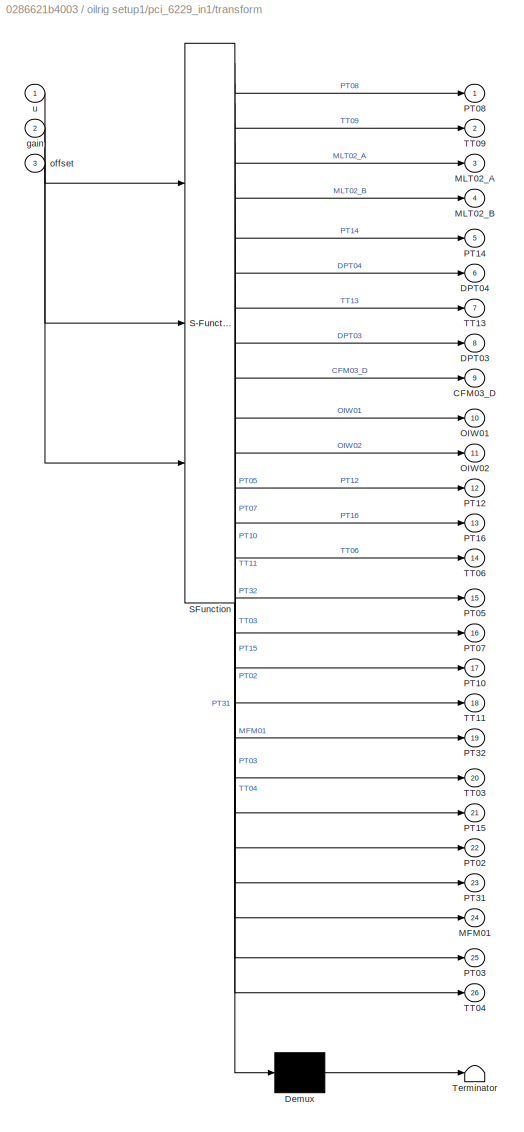
BLOCK [SubSystem] oilrig setup1/pci_6229_in1/transform
  ErrorFcn = Stateflow.Translate.translate
  PermitHierarchicalResolution = ExplicitOnly
  Ports = [3, 26]
  RequestExecContextInheritance = off
  SFBlockType = MATLAB Function
  TreatAsAtomicUnit = on
  Variant = off
BLOCK [Demux] oilrig setup1/pci_6229_in1/transform/ Demux 
  Outputs = 1
  Ports = [1, 1]
BLOCK [S-Function] oilrig setup1/pci_6229_in1/transform/ SFunction 
  EnableBusSupport = on
  FunctionName = sf_sfun
  PortCounts = [3 27]
  Ports = [3, 27]
  SFunctionDeploymentMode = off
  Tag = Stateflow S-Function PECT08 16
BLOCK [Terminator] oilrig setup1/pci_6229_in1/transform/ Terminator 
BLOCK [Outport] oilrig setup1/pci_6229_in1/transform/CFM03_D
  IconDisplay = Port number
  Port = 9
BLOCK [Outport] oilrig setup1/pci_6229_in1/transform/DPT03
  IconDisplay = Port number
  Port = 8
BLOCK [Outport] oilrig setup1/pci_6229_in1/transform/DPT04
  IconDisplay = Port number
  Port = 6
BLOCK [Outport] oilrig setup1/pci_6229_in1/transform/MFM01
  IconDisplay = Port number
  Port = 24
BLOCK [Outport] oilrig setup1/pci_6229_in1/transform/MLT02_A
  IconDisplay = Port number
  Port = 3
BLOCK [Outport] oilrig setup1/pci_6229_in1/transform/MLT02_B
  IconDisplay = Port number
  Port = 4
BLOCK [Outport] oilrig setup1/pci_6229_in1/transform/OIW01
  IconDisplay = Port number
  Port = 10
BLOCK [Outport] oilrig setup1/pci_6229_in1/transform/OIW02
  IconDisplay = Port number
  Port = 11
BLOCK [Outport] oilrig setup1/pci_6229_in1/transform/PT02
  IconDisplay = Port number
  Port = 22
BLOCK [Outport] oilrig setup1/pci_6229_in1/transform/PT03
  IconDisplay = Port number
  Port = 25
BLOCK [Outport] oilrig setup1/pci_6229_in1/transform/PT05
  IconDisplay = Port number
  Port = 15
BLOCK [Outport] oilrig setup1/pci_6229_in1/transform/PT07
  IconDisplay = Port number
  Port = 16
BLOCK [Outport] oilrig setup1/pci_6229_in1/transform/PT08
  IconDisplay = Port number
BLOCK [Outport] oilrig setup1/pci_6229_in1/transform/PT10
  IconDisplay = Port number
  Port = 17
BLOCK [Outport] oilrig setup1/pci_6229_in1/transform/PT12
  IconDisplay = Port number
  Port = 12
BLOCK [Outport] oilrig setup1/pci_6229_in1/transform/PT14
  IconDisplay = Port number
  Port = 5
BLOCK [Outport] oilrig setup1/pci_6229_in1/transform/PT15
  IconDisplay = Port number
  Port = 21
BLOCK [Outport] oilrig setup1/pci_6229_in1/transform/PT16
  IconDisplay = Port number
  Port = 13
BLOCK [Outport] oilrig setup1/pci_6229_in1/transform/PT31
  IconDisplay = Port number
  Port = 23
BLOCK [Outport] oilrig setup1/pci_6229_in1/transform/PT32
  IconDisplay = Port number
  Port = 19
BLOCK [Outport] oilrig setup1/pci_6229_in1/transform/TT03
  IconDisplay = Port number
  Port = 20
BLOCK [Outport] oilrig setup1/pci_6229_in1/transform/TT04
  IconDisplay = Port number
  Port = 26
BLOCK [Outport] oilrig setup1/pci_6229_in1/transform/TT06
  IconDisplay = Port number
  Port = 14
BLOCK [Outport] oilrig setup1/pci_6229_in1/transform/TT09
  IconDisplay = Port number
  Port = 2
BLOCK [Outport] oilrig setup1/pci_6229_in1/transform/TT11
  IconDisplay = Port number
  Port = 18
BLOCK [Outport] oilrig setup1/pci_6229_in1/transform/TT13
  IconDisplay = Port number
  Port = 7
BLOCK [Inport] oilrig setup1/pci_6229_in1/transform/gain
  IconDisplay = Port number
  Port = 2
BLOCK [Inport] oilrig setup1/pci_6229_in1/transform/offset
  IconDisplay = Port number
  Port = 3
BLOCK [Inport] oilrig setup1/pci_6229_in1/transform/u
  IconDisplay = Port number
BLOCK [SubSystem] oilrig setup1/pci_6229_in2
  Ports = [0, 1]
  RequestExecContextInheritance = off
  Variant = off
BLOCK [BusCreator] oilrig setup1/pci_6229_in2/bus
  DisplayOption = bar
  InheritFromInputs = on
  Inputs = 16
  Ports = [16, 1]
BLOCK [Constant] oilrig setup1/pci_6229_in2/gain
  Value = gain
BLOCK [Outport] oilrig setup1/pci_6229_in2/meas
  IconDisplay = Port number
BLOCK [Mux] oilrig setup1/pci_6229_in2/mux
  DisplayOption = bar
  Inputs = 16
  Ports = [16, 1]
BLOCK [Constant] oilrig setup1/pci_6229_in2/offset
  Value = offset
BLOCK [Reference] oilrig setup1/pci_6229_in2/src  REF=xpcnilib/A//D/M Series/PCI-6229 AD
  Ports = [0, 16]
  SourceBlock = xpcnilib/A//D/M Series/PCI-6229 AD
  SourceType = adnipci6229
BLOCK [SubSystem] oilrig setup1/pci_6229_in2/transform
  ErrorFcn = Stateflow.Translate.translate
  PermitHierarchicalResolution = ExplicitOnly
  Ports = [3, 16]
  RequestExecContextInheritance = off
  SFBlockType = MATLAB Function
  TreatAsAtomicUnit = on
  Variant = off
BLOCK [Demux] oilrig setup1/pci_6229_in2/transform/ Demux 
  Outputs = 1
  Ports = [1, 1]
BLOCK [S-Function] oilrig setup1/pci_6229_in2/transform/ SFunction 
  EnableBusSupport = on
  FunctionName = sf_sfun
  PortCounts = [3 17]
  Ports = [3, 17]
  SFunctionDeploymentMode = off
  Tag = Stateflow S-Function PECT08 17
BLOCK [Terminator] oilrig setup1/pci_6229_in2/transform/ Terminator 
BLOCK [Outport] oilrig setup1/pci_6229_in2/transform/CFM01_D
  IconDisplay = Port number
  Port = 16
BLOCK [Outport] oilrig setup1/pci_6229_in2/transform/CFM02_D
  IconDisplay = Port number
  Port = 14
BLOCK [Outport] oilrig setup1/pci_6229_in2/transform/DPT02
  IconDisplay = Port number
  Port = 10
BLOCK [Outport] oilrig setup1/pci_6229_in2/transform/LT01
  IconDisplay = Port number
  Port = 5
BLOCK [Outport] oilrig setup1/pci_6229_in2/transform/LT02
  IconDisplay = Port number
  Port = 3
BLOCK [Outport] oilrig setup1/pci_6229_in2/transform/MFM02
  IconDisplay = Port number
  Port = 8
BLOCK [Outport] oilrig setup1/pci_6229_in2/transform/MFM04
  IconDisplay = Port number
  Port = 12
BLOCK [Outport] oilrig setup1/pci_6229_in2/transform/MLT01_A
  IconDisplay = Port number
BLOCK [Outport] oilrig setup1/pci_6229_in2/transform/MLT01_B
  IconDisplay = Port number
  Port = 2
BLOCK [Outport] oilrig setup1/pci_6229_in2/transform/PT01
  IconDisplay = Port number
  Port = 11
BLOCK [Outport] oilrig setup1/pci_6229_in2/transform/PT11
  IconDisplay = Port number
  Port = 9
BLOCK [Outport] oilrig setup1/pci_6229_in2/transform/PT13
  IconDisplay = Port number
  Port = 7
BLOCK [Outport] oilrig setup1/pci_6229_in2/transform/TT01
  IconDisplay = Port number
  Port = 13
BLOCK [Outport] oilrig setup1/pci_6229_in2/transform/TT05
  IconDisplay = Port number
  Port = 4
BLOCK [Outport] oilrig setup1/pci_6229_in2/transform/TT12
  IconDisplay = Port number
  Port = 6
BLOCK [Outport] oilrig setup1/pci_6229_in2/transform/UFM01_D
  IconDisplay = Port number
  Port = 15
BLOCK [Inport] oilrig setup1/pci_6229_in2/transform/gain
  IconDisplay = Port number
  Port = 2
BLOCK [Inport] oilrig setup1/pci_6229_in2/transform/offset
  IconDisplay = Port number
  Port = 3
BLOCK [Inport] oilrig setup1/pci_6229_in2/transform/u
  IconDisplay = Port number
BLOCK [Outport] oilrig setup1/sens
  IconDisplay = Port number
BLOCK [SubSystem] oilrig setup1/terminating_safety
  Ports = [2]
  RequestExecContextInheritance = off
  Variant = off
BLOCK [BusSelector] oilrig setup1/terminating_safety/Bus Selector
  OutputSignals = signal2.PT08
  Ports = [1, 1]
BLOCK [Reference] oilrig setup1/terminating_safety/Check Static Lower Bound  REF=simulink/Model
Verification/Check Static 
Lower Bound
  Description = [sensors.MinOp]-([sensors.MaxOp]-[sensors.MinOp])*0.05 <= u
  Ports = [1, 1]
  SourceBlock = simulink/Model\nVerification/Check Static \nLower Bound
  SourceType = Checks_SMin
BLOCK [Reference] oilrig setup1/terminating_safety/Check Static Upper Bound  REF=simulink/Model
Verification/Check Static 
Upper Bound
  Description = u <= [sensors.MaxOp]+([sensors.MaxOp]-[sensors.MinOp])*0.05
  Ports = [1, 1]
  SourceBlock = simulink/Model\nVerification/Check Static \nUpper Bound
  SourceType = Checks_SMax
BLOCK [Reference] oilrig setup1/terminating_safety/Scope   REF=slrtlib/Displays and
Logging/Scope 
  Ports = [1]
  SourceBlock = slrtlib/Displays and\nLogging/Scope
  SourceType = xpcscopeblock
BLOCK [Inport] oilrig setup1/terminating_safety/acts
  IconDisplay = Port number
  Port = 2
BLOCK [SubSystem] oilrig setup1/terminating_safety/err_high
  ErrorFcn = Stateflow.Translate.translate
  PermitHierarchicalResolution = ExplicitOnly
  Ports = [2, 1]
  RequestExecContextInheritance = off
  SFBlockType = MATLAB Function
  TreatAsAtomicUnit = on
  Variant = off
BLOCK [Demux] oilrig setup1/terminating_safety/err_high/ Demux 
  Outputs = 1
  Ports = [1, 1]
BLOCK [S-Function] oilrig setup1/terminating_safety/err_high/ SFunction 
  EnableBusSupport = on
  FunctionName = sf_sfun
  PortCounts = [2 2]
  Ports = [2, 2]
  SFunctionDeploymentMode = off
  Tag = Stateflow S-Function PECT08 18
BLOCK [Terminator] oilrig setup1/terminating_safety/err_high/ Terminator 
BLOCK [Inport] oilrig setup1/terminating_safety/err_high/chk
  IconDisplay = Port number
BLOCK [Inport] oilrig setup1/terminating_safety/err_high/sensnames
  IconDisplay = Port number
  Port = 2
BLOCK [Outport] oilrig setup1/terminating_safety/err_high/stop
  IconDisplay = Port number
BLOCK [SubSystem] oilrig setup1/terminating_safety/err_low
  ErrorFcn = Stateflow.Translate.translate
  PermitHierarchicalResolution = ExplicitOnly
  Ports = [2, 1]
  RequestExecContextInheritance = off
  SFBlockType = MATLAB Function
  TreatAsAtomicUnit = on
  Variant = off
BLOCK [Demux] oilrig setup1/terminating_safety/err_low/ Demux 
  Outputs = 1
  Ports = [1, 1]
BLOCK [S-Function] oilrig setup1/terminating_safety/err_low/ SFunction 
  EnableBusSupport = on
  FunctionName = sf_sfun
  PortCounts = [2 2]
  Ports = [2, 2]
  SFunctionDeploymentMode = off
  Tag = Stateflow S-Function PECT08 19
BLOCK [Terminator] oilrig setup1/terminating_safety/err_low/ Terminator 
BLOCK [Inport] oilrig setup1/terminating_safety/err_low/chk
  IconDisplay = Port number
BLOCK [Inport] oilrig setup1/terminating_safety/err_low/sensnames
  IconDisplay = Port number
  Port = 2
BLOCK [Outport] oilrig setup1/terminating_safety/err_low/stop
  IconDisplay = Port number
BLOCK [Inport] oilrig setup1/terminating_safety/meas
  IconDisplay = Port number
BLOCK [Constant] oilrig setup1/terminating_safety/sname
  Value = sensnames
BLOCK [Stop] oilrig setup1/terminating_safety/stop
BLOCK [Stop] oilrig setup1/terminating_safety/stop1
BLOCK [SubSystem] oilrig setup1/to_logging_data
  Ports = [1]
  RequestExecContextInheritance = off
  Variant = off
BLOCK [Reference] oilrig setup1/to_logging_data/Scope   REF=slrtlib/Displays and
Logging/Scope 
  Ports = [1]
  SourceBlock = slrtlib/Displays and\nLogging/Scope
  SourceType = xpcscopeblock
BLOCK [Inport] oilrig setup1/to_logging_data/meas
  IconDisplay = Port number
BLOCK [SubSystem] oilrig setup1/to_logging_exc
  Ports = [1]
  RequestExecContextInheritance = off
  Variant = off
BLOCK [InitialCondition] oilrig setup1/to_logging_exc/IC
  Value = zeros(numel(actuators),1)
BLOCK [Reference] oilrig setup1/to_logging_exc/Scope   REF=slrtlib/Displays and
Logging/Scope 
  Ports = [1]
  SourceBlock = slrtlib/Displays and\nLogging/Scope
  SourceType = xpcscopeblock
BLOCK [Inport] oilrig setup1/to_logging_exc/exc
  IconDisplay = Port number
BLOCK [Constant] underflow valve1
  Value = 0.42
BLOCK [Constant] underflow valve2
  Value = 0.38
BLOCK [Constant] underflow valve3
  Value = 0.65
LINE Add1:1 -> Multiport Switch3:2
LINE Add2:1 -> Sum1:1
LINE Add:1 -> Multiport Switch2:3
LINE Bus Selector1:1 -> Scope :1
LINE Bus Selector2:1 -> Comp:1
LINE Bus Selector3:1 -> MATLAB Function:1
LINE Bus Selector3:2 -> MATLAB Function:2
LINE Bus Selector3:3 -> MATLAB Function:3
LINE Bus Selector4:1 -> Scope 1:1
LINE Bus Selector5:1 -> Lowpass Filter1:1
LINE Bus Selector5:2 -> Lowpass Filter2:1
LINE Bus Selector5:3 -> Lowpass Filter3:1
LINE Bus Selector:1 -> Lowpass Filter:1
LINE Bus Selector:2 -> Add:1
LINE Comp:1 -> S-R Flip-Flop:1
LINE Constant1:1 -> oilrig setup1:5
LINE Constant2:1 -> oilrig setup1:4
LINE Constant3:1 -> Multiport Switch:1
LINE Constant4:1 -> Multiport Switch1:1
LINE Constant5:1 -> Switch:1
LINE Constant6:1 -> oilrig setup1:6
LINE Constant7:1 -> oilrig setup1:8
LINE Constant8:1 -> Add:2
LINE Constant9:1 -> S-R Flip-Flop:2
LINE Divide1:1 -> Sum:1
LINE Flow1:1 -> Multiport Switch2:1
LINE Gain:1 -> oilrig setup1:9
LINE Lowpass Filter1:1 -> MATLAB Function1:1
LINE Lowpass Filter2:1 -> MATLAB Function1:2
LINE Lowpass Filter3:1 -> MATLAB Function1:3
NET Lowpass Filter:1 -> Gain:1, Multiport Switch2:2
NET MATLAB Function1:1 -> Mux:4, Scope 3:1
LINE MATLAB Function:1 -> Sum1:2
LINE Multiport Switch1:1 -> oilrig setup1:2
NET Multiport Switch2:1 -> Mux:2, Sum:2
LINE Multiport Switch3:1 -> Divide1:1
LINE Multiport Switch:1 -> oilrig setup1:3
LINE Mux:1 -> oilrig setup1:1
LINE PID Controller1:1 -> Multiport Switch:4
NET PID Controller:1 -> Mux:3, oilrig setup1:7
LINE Pulse Generator1:1 -> Add2:2
LINE Ramp:1 -> Saturation:1
LINE Reference1:1 -> Add2:1
LINE Reference2:1 -> Multiport Switch3:3
LINE Reference3:1 -> Multiport Switch3:1
LINE Reference4:1 -> Add1:2
LINE Reference:1 -> Add1:1
LINE S-R Flip-Flop:1 -> Switch:2
LINE S-R Flip-Flop:2 -> Terminator:1
LINE Saturation:1 -> Divide1:2
LINE Subsystem/Bus Selector2:1 -> Subsystem/Lowpass Filter1:1
LINE Subsystem/Bus Selector2:2 -> Subsystem/Lowpass Filter2:1
LINE Subsystem/Bus Selector2:3 -> Subsystem/Lowpass Filter3:1
LINE Subsystem/Fi:1 -> Subsystem/Out2:1
LINE Subsystem/Flow1:1 -> Subsystem/Sum2:1
LINE Subsystem/Flow_oscilation1:1 -> Subsystem/Out9:1
LINE Subsystem/Flow_oscilation2:1 -> Subsystem/Out1:1
LINE Subsystem/Flow_oscilation2:2 -> Subsystem/Out4:1
LINE Subsystem/Flow_oscilation2:3 -> Subsystem/Out5:1
LINE Subsystem/Flow_oscilation3:1 -> Subsystem/Out3:1
LINE Subsystem/Flow_oscilation:1 -> Subsystem/Out7:1
LINE Subsystem/Flow_slug_Triangle:1 -> Subsystem/Out11:1
LINE Subsystem/Flow_slug_square:1 -> Subsystem/Out8:1
LINE Subsystem/Flow_slug_square_long:1 -> Subsystem/Out6:1
LINE Subsystem/Flow_step :1 -> Subsystem/Out14:1
LINE Subsystem/In1:1 -> Subsystem/Bus Selector2:1
NET Subsystem/Lowpass Filter1:1 -> Subsystem/MATLAB Function:1, Subsystem/Sum2:2
LINE Subsystem/Lowpass Filter2:1 -> Subsystem/MATLAB Function:2
LINE Subsystem/Lowpass Filter3:1 -> Subsystem/MATLAB Function:3
LINE Subsystem/MATLAB Function1:1 -> Subsystem/Out26:1
LINE Subsystem/MATLAB Function:1 -> Subsystem/Sum1:2
LINE Subsystem/PDR ref:1 -> Subsystem/Sum1:1
LINE Subsystem/PID Controller1:1 -> Subsystem/Out23:1
LINE Subsystem/PID Controller2:1 -> Subsystem/MATLAB Function1:1
LINE Subsystem/Signal Builder1:1 -> Subsystem/Out15:1
LINE Subsystem/Signal Builder1:2 -> Subsystem/Out16:1
LINE Subsystem/Signal Builder1:3 -> Subsystem/Out17:1
LINE Subsystem/Signal Builder1:4 -> Subsystem/Out19:1
LINE Subsystem/Signal Builder1:5 -> Subsystem/Out20:1
LINE Subsystem/Signal Builder3:1 -> Subsystem/Out12:1
LINE Subsystem/Signal Builder:1 -> Subsystem/Out13:1
LINE Subsystem/Sum1:1 -> Subsystem/PID Controller1:1
LINE Subsystem/Sum2:1 -> Subsystem/PID Controller2:1
LINE Subsystem/Underflow valve step:1 -> Subsystem/Out18:1
LINE Subsystem/Vu:1 -> Subsystem/Out22:1
LINE Subsystem/underflow valve:1 -> Subsystem/Out10:1
LINE Subsystem/underflow_valve_oscilation1:1 -> Subsystem/Out21:1
LINE Subsystem/underflow_valve_oscilation1:2 -> Subsystem/Out24:1
LINE Subsystem/underflow_valve_oscilation1:3 -> Subsystem/Out25:1
LINE Sum1:1 -> PID Controller1:1
LINE Sum:1 -> PID Controller:1
LINE Switch:1 -> Multiport Switch1:4
LINE Underflow valve step1:1 -> Multiport Switch:5
LINE Underflow valve step:1 -> Switch:3
LINE Workspace1:1 -> Multiport Switch:2
LINE Workspace2:1 -> Multiport Switch1:2
LINE konst:1 -> Multiport Switch:3
NET oilrig setup1:1 -> Bus Selector1:1, Bus Selector2:1, Bus Selector3:1, Bus Selector4:1, Bus Selector5:1, Bus Selector:1
LINE underflow valve3:1 -> Multiport Switch1:3
note: NET lines group one-source signal fan-out (src -> all destinations, sorted); 1:1 wires keep LINE
CHART MATLAB Function1 states=1 transitions=1
  STATE_LABEL 'eML_blk_kernel()'
  STATE_LABEL 'SCRIPT:\nfunction PDR = fcn(Pi,Po,Pu)\n%#codegen\n\nPDR = (Pi-Po)/(Pi-Pu);'
CHART Subsystem/MATLAB Function states=1 transitions=1
  STATE_LABEL 'eML_blk_kernel()'
  STATE_LABEL 'SCRIPT:\nfunction PDR = fcn(Pi,Po,Pu)\n%#codegen\n\nPDR = (Pi-Po)/(Pi-Pu);'
CHART Subsystem/MATLAB Function1 states=1 transitions=1
  STATE_LABEL 'eML_blk_kernel()'
  STATE_LABEL 'SCRIPT:\nfunction y = fcn(u)\n%#codegen\n\ny = 1-u;'
CHART MATLAB Function states=1 transitions=1
  STATE_LABEL 'eML_blk_kernel()'
  STATE_LABEL 'SCRIPT:\nfunction PDR = fcn(Pi,Po,Pu)\n%#codegen\n\nPDR = (Pi-Po)/(Pi-Pu);'
CHART oilrig setup1/PCI_6229_out1/transform states=1 transitions=1
  STATE_LABEL 'eML_blk_kernel()'
  STATE_LABEL 'SCRIPT:\nfunction [WP03,CV07]  = fcn(u,gain,offset)\n   y = u.*gain-offset;\nWP03 = y(1);\nCV07 = y(2);'
CHART oilrig setup1/PCI_6704_out/transform states=1 transitions=1
  STATE_LABEL 'eML_blk_kernel()'
  STATE_LABEL 'SCRIPT:\nfunction [OP01,OP02,OP03,WP01,WP02,OP04,AFM01,AFM02,AFM03,CV03,CV04,CV09,CV05,CV12,CV22,CV15]  = fcn(u,gain,offset)\n   y = u.*gain-offset;\nOP01 = y(1);\nOP02 = y(2);\nOP03 = y(3);\nWP01 = y(4);\nWP02 = y(5);\nOP04 = y(6);\nAFM01 = y(7);\nAFM02 = y(8);\nAFM03 = y(9);\nCV03 = y(10);\nCV04 = y(11);\nCV09 = y(12);\nCV05 = y(13);\nCV12 = y(14);\nCV22 = y(15);\nCV15 = y(16);'
CHART oilrig setup1/non-terminating_safety/MATLAB Function states=1 transitions=1
  STATE_LABEL 'eML_blk_kernel()'
  STATE_LABEL 'SCRIPT:\nfunction WP01 = fcn(LT02, MLT01_A)\n%#codegen\npersistent filling\n\nif isempty(filling)\n   filling = 0;\nend\n\nif (LT02 < 0.4) && (MLT01_A > 0.6)\n   filling = 1;\nend\n\nif (LT02 > 0.6) || (MLT01_A < 0.5)\n   filling = 0; \nend\n\nWP01 = filling;\n\n'
CHART oilrig setup1/pci_6229_in/transform states=1 transitions=1
  STATE_LABEL 'eML_blk_kernel()'
  STATE_LABEL 'SCRIPT:\nfunction [AFM01,AFM02,AFM03,CV03,CV07,CV04,CV09,CV05,CV12,CV22,CV15]  = fcn(u,gain,offset)\n   y = u.*gain-offset;\nAFM01 = y(1);\nAFM02 = y(2);\nAFM03 = y(3);\nCV03 = y(4);\nCV07 = y(5);\nCV04 = y(6);\nCV09 = y(7);\nCV05 = y(8);\nCV12 = y(9);\nCV22 = y(10);\nCV15 = y(11);'
CHART oilrig setup1/pci_6229_in1/transform states=1 transitions=1
  STATE_LABEL 'eML_blk_kernel()'
  STATE_LABEL 'SCRIPT:\nfunction [PT08,TT09,MLT02_A,MLT02_B,PT14,DPT04,TT13,DPT03,CFM03_D,OIW01,OIW02,PT12,PT16,TT06,PT05,PT07,PT10,TT11,PT32,TT03,PT15,PT02,PT31,MFM01,PT03,TT04]  = fcn(u,gain,offset)\n   y = u.*gain-offset;\nPT08 = y(1);\nTT09 = y(2);\nMLT02_A = y(3);\nMLT02_B = y(4);\nPT14 = y(5);\nDPT04 = y(6);\nTT13 = y(7);\nDPT03 = y(8);\nCFM03_D = y(9);\nOIW01 = y(10);\nOIW02 = y(11);\nPT12 = y(12);\nPT16 = y(13);\nTT06 =...<+176ch>'
CHART oilrig setup1/pci_6229_in2/transform states=1 transitions=1
  STATE_LABEL 'eML_blk_kernel()'
  STATE_LABEL 'SCRIPT:\nfunction [MLT01_A,MLT01_B,LT02,TT05,LT01,TT12,PT13,MFM02,PT11,DPT02,PT01,MFM04,TT01,CFM02_D,UFM01_D,CFM01_D]  = fcn(u,gain,offset)\n   y = u.*gain-offset;\nMLT01_A = y(1);\nMLT01_B = y(2);\nLT02 = y(3);\nTT05 = y(4);\nLT01 = y(5);\nTT12 = y(6);\nPT13 = y(7);\nMFM02 = y(8);\nPT11 = y(9);\nDPT02 = y(10);\nPT01 = y(11);\nMFM04 = y(12);\nTT01 = y(13);\nCFM02_D = y(14);\nUFM01_D = y(15);\nCFM01_D = y(16);'
CHART oilrig setup1/terminating_safety/err_high states=1 transitions=1
  STATE_LABEL 'eML_blk_kernel()'
  STATE_LABEL "SCRIPT:\nfunction stop  = fcn(chk, sensnames)\n%#codegen\n%test = char(sensnames.');\ntest = sensnames.';\nk = find(test == 47);\nk = [0 k];\nk = [k numel(test)];\nstop = 0;\nfor i = 1:numel(chk)\n    if chk(i) == 0\n        str = char(test(k(i)+1:k(i+1)-1));\n        Error = [str ': VALUE TOO HIGH ']\n        coder.ceval('printf', ['%s' 10 0], Error);\n        stop = stop+1;\n    end\nend\n\n\n\n"
CHART oilrig setup1/terminating_safety/err_low states=1 transitions=1
  STATE_LABEL 'eML_blk_kernel()'
  STATE_LABEL "SCRIPT:\nfunction stop  = fcn(chk, sensnames)\n%#codegen\ntest = char(sensnames.');\nk = strfind(test, '/');\nk = [0 k];\nk = [k numel(sensnames)];\nstop = 0;\nfor i = 1:numel(chk)\n    if chk(i) == 0\n        str = char(test(k(i)+1:k(i+1)-1));\n        Error = [str ': VALUE TOO LOW']\n        coder.ceval('printf', ['%s' 10 0], Error);\n        stop = stop+1;\n    end\nend\n"
